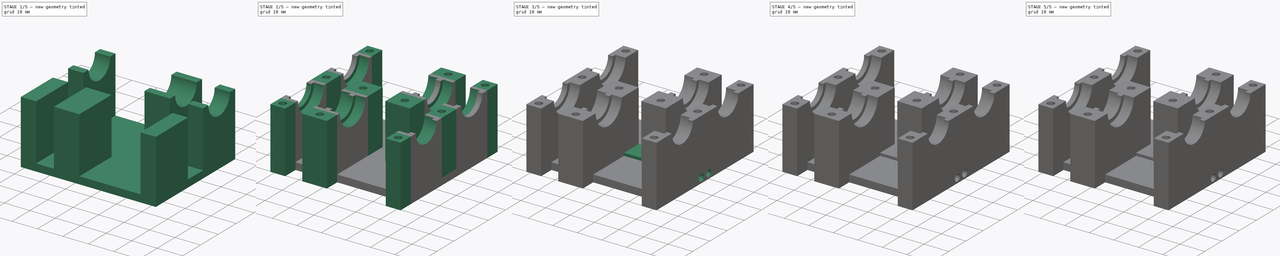
[diagram: build sequence overview — one tinted view per stage of 5, left to right]
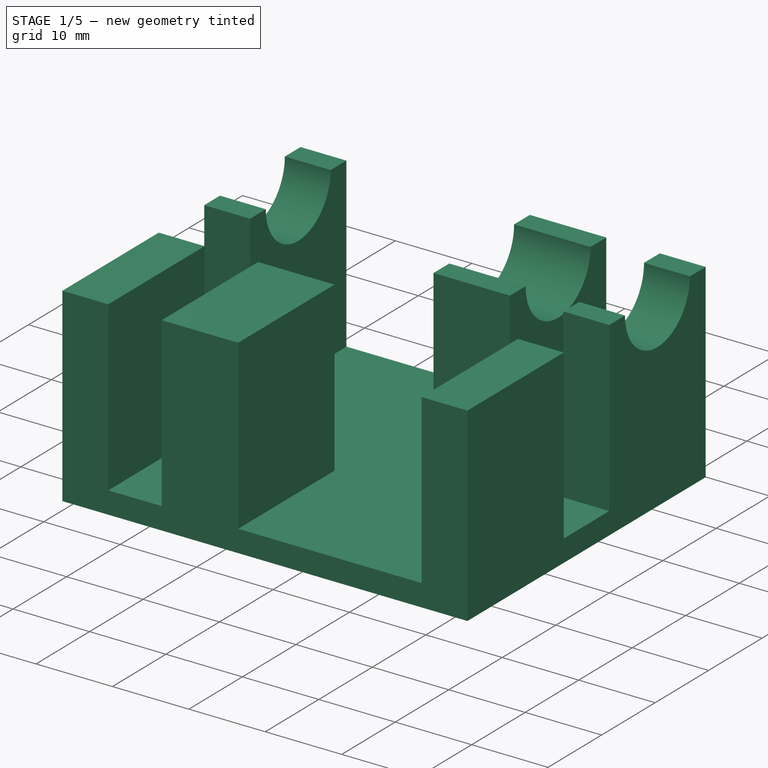
[diagram: stage 1 of 5 — iso view after this stage's code; geometry added in this stage tinted green]
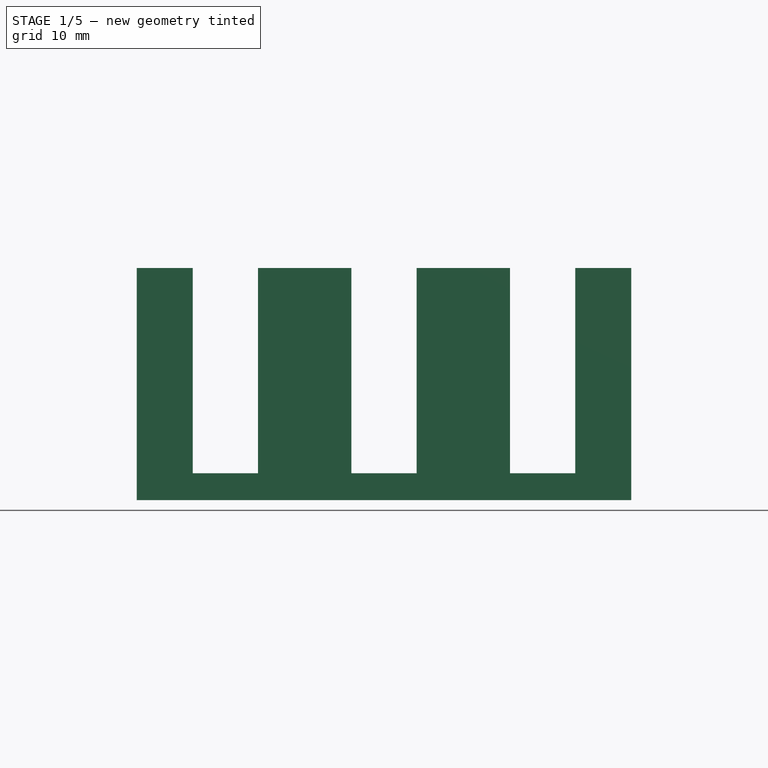
[diagram: stage 1 of 5 — front view after this stage's code; geometry added in this stage tinted green]
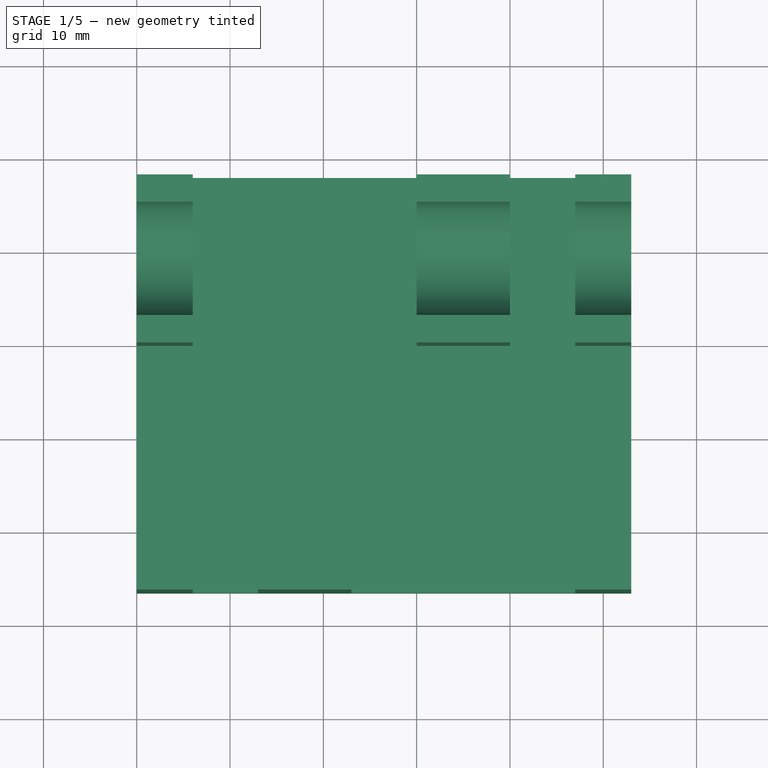
[diagram: stage 1 of 5 — top view after this stage's code; geometry added in this stage tinted green]
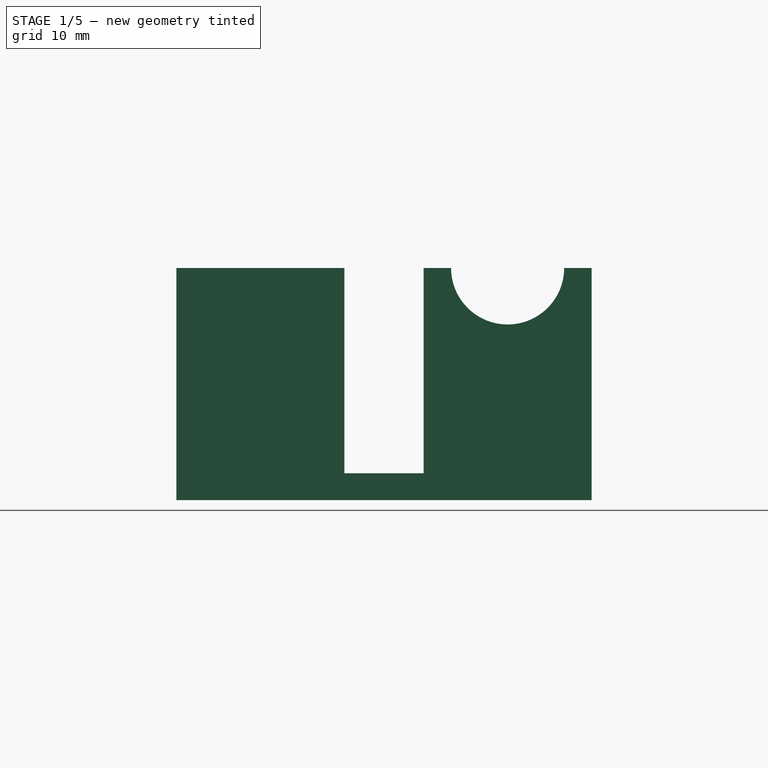
[diagram: stage 1 of 5 — right view after this stage's code; geometry added in this stage tinted green]
FCSTD DOCUMENT  (FreeCAD 0.20R29177 +426 (Git))
Label: TransmissionHolderNew
License: All rights reserved
LicenseURL: http://en.wikipedia.org/wiki/All_rights_reserved
objects: Sketcher::SketchObject×17, PartDesign::Line×7, PartDesign::Pad×6, PartDesign::Groove×6, PartDesign::Pocket×4, PartDesign::Body×3, Spreadsheet::Sheet×1
note: 59 computed .brp shape members not serialized (recipe doc carries the construction recipe); baked Part::Feature solids carry a one-line shape summary decoded from their .brp

FEATURE [Sketcher::SketchObject] Sketch
  FullyConstrained = true
  MapMode = 5
  Support = -> [XY_Plane]
  expr: Constraints[10] = Spreadsheet.bearingBlockSize
  expr: Constraints[20] = Spreadsheet.supportDist
  expr: Constraints[22] = Spreadsheet.normalBlockWidth
  expr: Constraints[34] = Spreadsheet.supportVerticalDist
  expr: Constraints[45] = Spreadsheet.supportVerticalDist
  expr: Constraints[46] = Spreadsheet.wheelWidth
  expr: Constraints[65] = Spreadsheet.supportDist
  expr: Constraints[9] = Spreadsheet.singleBearingWidth
  sketch-geometry (24):
    g0: LineSegment StartX=0 StartY=0 StartZ=0 EndX=6 EndY=0 EndZ=0
    g1: LineSegment StartX=6 StartY=0 StartZ=0 EndX=6 EndY=18 EndZ=0
    g2: LineSegment StartX=6 StartY=18 StartZ=0 EndX=0 EndY=18 EndZ=0
    g3: LineSegment StartX=0 StartY=18 StartZ=0 EndX=0 EndY=0 EndZ=0
    g4: LineSegment StartX=30 StartY=0 StartZ=0 EndX=40 EndY=0 EndZ=0
    g5: LineSegment StartX=40 StartY=0 StartZ=0 EndX=40 EndY=18 EndZ=0
    g6: LineSegment StartX=40 StartY=18 StartZ=0 EndX=30 EndY=18 EndZ=0
    g7: LineSegment StartX=30 StartY=18 StartZ=0 EndX=30 EndY=0 EndZ=0
    g8: LineSegment StartX=0 StartY=-8.5 StartZ=0 EndX=6 EndY=-8.5 EndZ=0
    g9: LineSegment StartX=6 StartY=-8.5 StartZ=0 EndX=6 EndY=-26.5 EndZ=0
    g10: LineSegment StartX=6 StartY=-26.5 StartZ=0 EndX=0 EndY=-26.5 EndZ=0
    g11: LineSegment StartX=0 StartY=-26.5 StartZ=0 EndX=0 EndY=-8.5 EndZ=0
    g12: LineSegment StartX=13 StartY=-8.5 StartZ=0 EndX=23 EndY=-8.5 EndZ=0
    g13: LineSegment StartX=23 StartY=-8.5 StartZ=0 EndX=23 EndY=-26.5 EndZ=0
    g14: LineSegment StartX=23 StartY=-26.5 StartZ=0 EndX=13 EndY=-26.5 EndZ=0
    g15: LineSegment StartX=13 StartY=-26.5 StartZ=0 EndX=13 EndY=-8.5 EndZ=0
    g16: LineSegment StartX=47 StartY=0 StartZ=0 EndX=53 EndY=0 EndZ=0
    g17: LineSegment StartX=53 StartY=0 StartZ=0 EndX=53 EndY=18 EndZ=0
    g18: LineSegment StartX=53 StartY=18 StartZ=0 EndX=47 EndY=18 EndZ=0
    g19: LineSegment StartX=47 StartY=18 StartZ=0 EndX=47 EndY=0 EndZ=0
    g20: LineSegment StartX=47 StartY=-8.5 StartZ=0 EndX=53 EndY=-8.5 EndZ=0
    g21: LineSegment StartX=53 StartY=-8.5 StartZ=0 EndX=53 EndY=-26.5 EndZ=0
    g22: LineSegment StartX=53 StartY=-26.5 StartZ=0 EndX=47 EndY=-26.5 EndZ=0
    g23: LineSegment StartX=47 StartY=-26.5 StartZ=0 EndX=47 EndY=-8.5 EndZ=0
  constraints (71):
    c: Coincident(g0,g1)
    c: Coincident(g1,g2)
    c: Coincident(g2,g3)
    c: Coincident(g3,g0)
    c: Horizontal(g0)
    c: Horizontal(g2)
    c: Vertical(g1)
    c: Vertical(g3)
    c: Coincident(g0,g-1)
    c: DistanceX(g2,g2) = 6
    c: DistanceY(g1,g1) = 18
    c: Coincident(g4,g5)
    c: Coincident(g5,g6)
    c: Coincident(g6,g7)
    c: Coincident(g7,g4)
    c: Horizontal(g4)
    c: Horizontal(g6)
    c: Vertical(g5)
    c: Vertical(g7)
    c: PointOnObject(g4,g-1)
    c: DistanceX(g0,g4) = 24
    c: Equal(g7,g3)
    c: DistanceX(g6,g6) = 10
    c: Coincident(g8,g9)
    c: Coincident(g9,g10)
    c: Coincident(g10,g11)
    c: Coincident(g11,g8)
    c: Horizontal(g8)
    c: Horizontal(g10)
    c: Vertical(g9)
    c: Vertical(g11)
    c: PointOnObject(g8,g-2)
    c: Equal(g11,g3)
    c: Equal(g8,g2)
    c: DistanceY(g8,g0) = 8.5
    c: Coincident(g12,g13)
    c: Coincident(g13,g14)
    c: Coincident(g14,g15)
    c: Coincident(g15,g12)
    c: Horizontal(g12)
    c: Horizontal(g14)
    c: Vertical(g13)
    c: Vertical(g15)
    c: Equal(g6,g12)
    c: Equal(g15,g7)
    c: DistanceY(g12,g0) = 8.5
    c: DistanceX(g8,g12) = 7
    c: Coincident(g16,g17)
    c: Coincident(g17,g18)
    c: Coincident(g18,g19)
    c: Coincident(g19,g16)
    c: Horizontal(g16)
    c: Horizontal(g18)
    c: Vertical(g17)
    c: Vertical(g19)
    c: PointOnObject(g16,g-1)
    c: Coincident(g20,g21)
    c: Coincident(g21,g22)
    c: Coincident(g22,g23)
    c: Coincident(g23,g20)
    c: Horizontal(g20)
    c: Horizontal(g22)
    c: Vertical(g21)
    c: Vertical(g23)
    c: DistanceX(g18,g20) = 0
    c: DistanceX(g12,g20) = 24
    c: Equal(g18,g2)
    c: Equal(g20,g8)
    c: Equal(g19,g5)
    c: Equal(g23,g1)
    c: DistanceY(g22,g13) = 0
FEATURE [Spreadsheet::Sheet] Spreadsheet
  cells = A2=bearingWidth; B2(bearingWidth)=4; A3=bearingSpacing; B3(bearingSpacing)=2; A4=wheelWidth; B4(wheelWidth)=7; A5=wheelSpacing; B5=0; C5=supportDist; D5(supportDist)==B4 * 2 + B2 * 2 + B3 + B5; A6=supportVerticalDist; B6(supportVerticalDist)==28 - B11 - 1.5; A7=height; B7(height)=22; A8=normalBlockWidth; B8(normalBlockWidth)==B2 * 2 + B3; A9=bearingBlockSupportWidth; B9(bearingBlockSupportWidth)=2.88; C9=added to bearinR*2 for block height; A10=bearingR; B10(bearingR)=7.56; A11=bearingBlockSize; B11(bearingBlockSize)==B10 * 2 + B9; A12=shaftPassR; B12(shaftPassR)==B10 - 1.5; A13=sideWidth; B13(sideWidth)=6; A14=totalHeight; B14(totalHeight)==B7 + B9; E14=Spreadsheet.bearingBlockSupportWidth + Spreadsheet.height; A15=screwR; B15(screwR)=1.4; A16=sideScrewX; B16(sideScrewX)=5; A17=middleScrewToSideX; B17(middleScrewToSideX)=18; A18=totalFrontShaftFaceWidth; B18(totalFrontShaftFaceWidth)==B20 + D5 + B8 + B4 + B20; C18=Spreadsheet.singleBearingWidth\nSpreadsheet.supportDist\nSpreadsheet.normalBlockWidth\nSpreadsheet.wheelWidth\nSpreadsheet.singleBearingWidth; A19=bottomScrewPadWidth; B19(bottomScrewPadWidth)=15; A20=singleBearingWidth; B20(singleBearingWidth)==B2 + B3; C20=bearingWidth + bearingSpacing; A21=bottomVerticalScrewPlaceHeight; B21(bottomVerticalScrewPlaceHeight)=4; A22=s2; B22(s2)==B20 + B4; C22=singleBearing+whell; A23=s3; B23(s3)==B22 + B8; A24=s4; B24(s4)==B20 + D5; C24=singleBearing+; A25=s5; B25(s5)==B24 + B8; A26=s6; B26(s6)==B18 - B20; A29=coverPieces; A30=coverConnOutsideBearingBlockCenter; B30(coverConnOutsideBearingBlockCenter)==B11 / 2; A31=coverConnOutsideBearingBlockCenterLongSide; B31(coverConnOutsideBearingBlockCenterLongSide)==B30 + B6; A32=coverBearingHoldeThickness; B32=2.5; A33=coverBearingHoldOutsideR; B33(coverBearingHoldOutsideR)==B10 + B32; A34=smallShaftHoleToSide; B34(smallShaftHoleToSide)==B11 / 2 - B12; A35=biggerBearingHoleToSide; B35(biggerBearingHoleToSide)==B11 / 2 - B10; A36=passingM3ScrewR; B36(passingM3ScrewR)==B15 + 0.2; A37=m3HeadSize; B37(m3HeadSize)=2.5
FEATURE [Sketcher::SketchObject] Sketch001  label="Sketch001BasePlate"
  ExternalGeometry = -> [Sketch]
  FullyConstrained = true
  MapMode = 5
  Support = -> [XY_Plane]
  sketch-geometry (4):
    g0: LineSegment StartX=0 StartY=18 StartZ=0 EndX=53 EndY=18 EndZ=0
    g1: LineSegment StartX=53 StartY=18 StartZ=0 EndX=53 EndY=-26.5 EndZ=0
    g2: LineSegment StartX=53 StartY=-26.5 StartZ=0 EndX=0 EndY=-26.5 EndZ=0
    g3: LineSegment StartX=0 StartY=-26.5 StartZ=0 EndX=0 EndY=18 EndZ=0
  constraints (10):
    c: Coincident(g0,g1)
    c: Coincident(g1,g2)
    c: Coincident(g2,g3)
    c: Coincident(g3,g0)
    c: Horizontal(g0)
    c: Horizontal(g2)
    c: Vertical(g1)
    c: Vertical(g3)
    c: Coincident(g0,g-3)
    c: Coincident(g1,g-4)
FEATURE [PartDesign::Pad] Pad
  Direction = (0,0,1)
  Length = 2.88
  Length2 = 10
  Profile = -> Sketch001
  ReferenceAxis = -> Sketch001 [N_Axis]
  Type = 0
  expr: Length = Spreadsheet.bearingBlockSupportWidth
FEATURE [PartDesign::Pad] Pad001
  BaseFeature = -> Pad
  Direction = (0,0,1)
  Length = 24.88
  Length2 = 10
  Profile = -> Sketch
  ReferenceAxis = -> Sketch [N_Axis]
  Type = 0
  expr: Length = Spreadsheet.totalHeight
FEATURE [Sketcher::SketchObject] Sketch002  label="Sketch002TopBearingPassSmall"
  ExternalGeometry = -> [Pad001]
  FullyConstrained = true
  MapMode = 5
  Placement = pos=(0,0,24.88) rot=(0,0,1;0rad)
  Support = -> [Pad001]
  expr: Constraints[11] = Spreadsheet.bearingBlockSize / 2
  expr: Constraints[12] = Spreadsheet.shaftPassR
  sketch-geometry (4):
    g0: LineSegment StartX=0 StartY=15.06 StartZ=0 EndX=53 EndY=15.06 EndZ=0
    g1: LineSegment StartX=53 StartY=15.06 StartZ=0 EndX=53 EndY=9 EndZ=0
    g2: LineSegment StartX=53 StartY=9 StartZ=0 EndX=0 EndY=9 EndZ=0
    g3: LineSegment StartX=0 StartY=9 StartZ=0 EndX=0 EndY=15.06 EndZ=0
  constraints (13):
    c: Coincident(g0,g1)
    c: Coincident(g1,g2)
    c: Coincident(g2,g3)
    c: Coincident(g3,g0)
    c: Horizontal(g0)
    c: Horizontal(g2)
    c: Vertical(g1)
    c: Vertical(g3)
    c: PointOnObject(g0,g-3)
    c: PointOnObject(g1,g-4)
    c: DistanceY(g-3,g-3) = 18
    c: DistanceY(g-3,g2) = 9
    c: DistanceY(g3,g3) = 6.06
FEATURE [PartDesign::Line] DatumLine  label="DatumLineTopBearingPass"
  AttacherType = Attacher::AttachEngineLine
  Length = 20
  MapMode = 29
  Placement = pos=(0,9,24.88) rot=(0.57735,-0.57735,-0.57735;2.0944rad)
  ResizeMode = 0
  Support = -> [Sketch002]
FEATURE [PartDesign::Groove] Groove
  Angle = 360
  Axis = (-1,0,0)
  Base = (0,9,24.88)
  BaseFeature = -> Pad001
  Profile = -> Sketch002
  ReferenceAxis = -> DatumLine
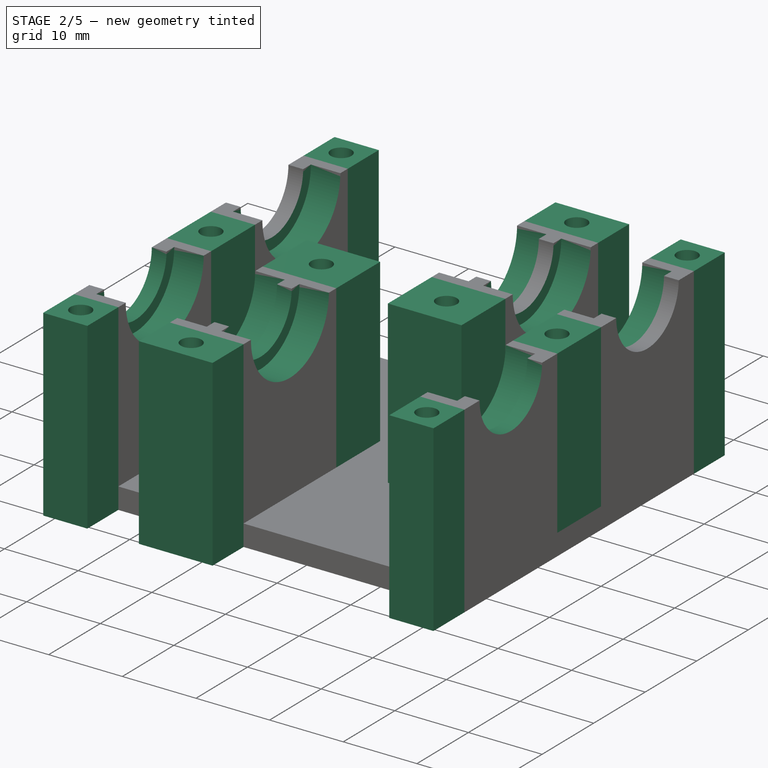
[diagram: stage 2 of 5 — iso view after this stage's code; geometry added in this stage tinted green]
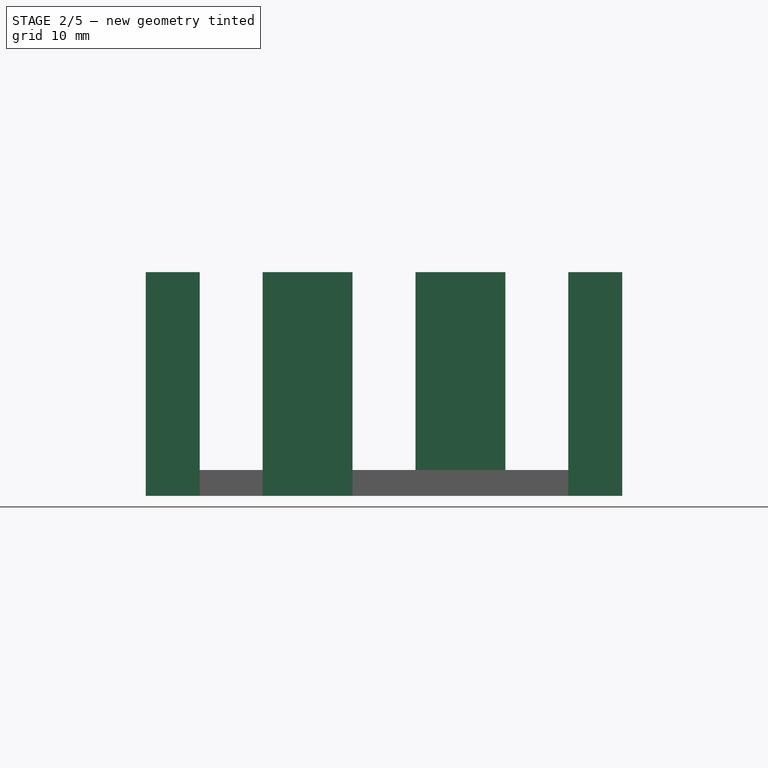
[diagram: stage 2 of 5 — front view after this stage's code; geometry added in this stage tinted green]
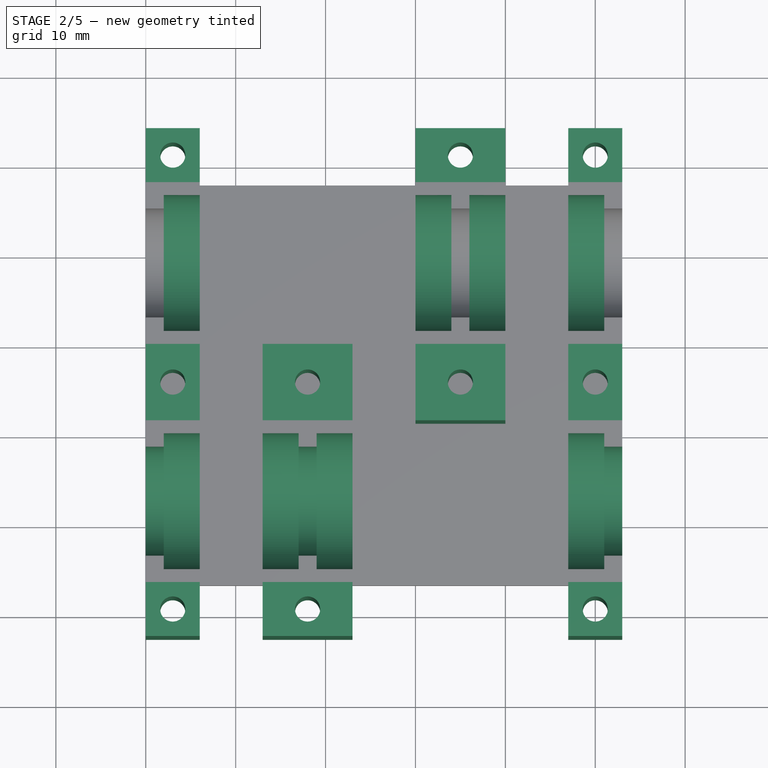
[diagram: stage 2 of 5 — top view after this stage's code; geometry added in this stage tinted green]
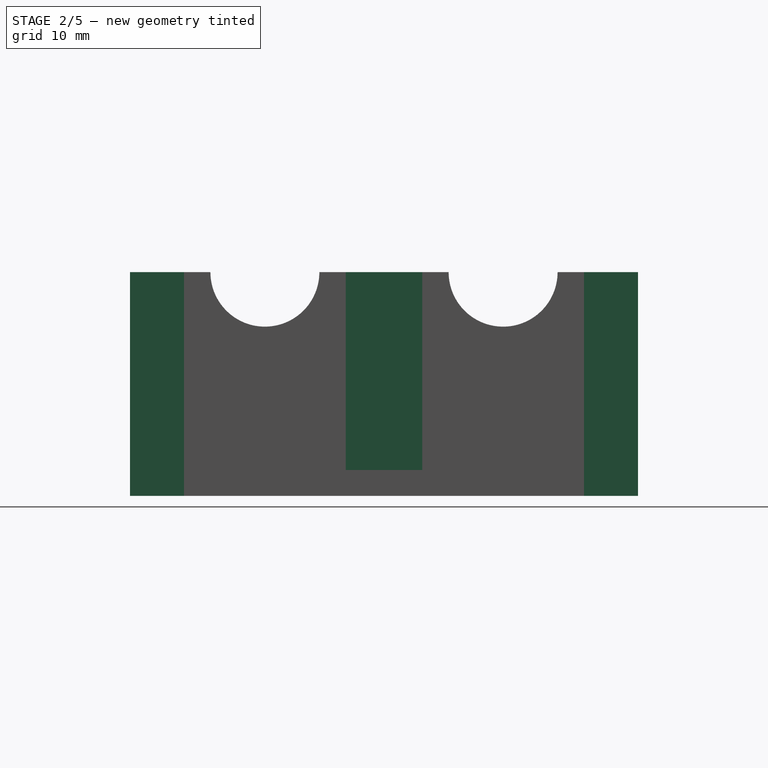
[diagram: stage 2 of 5 — right view after this stage's code; geometry added in this stage tinted green]
FEATURE [Sketcher::SketchObject] Sketch003  label="Sketch003TopShaftPass"
  ExternalGeometry = -> [DatumLine,Groove]
  FullyConstrained = true
  MapMode = 5
  Placement = pos=(0,0,24.88) rot=(0,0,1;0rad)
  Support = -> [Groove]
  expr: Constraints[16] = Spreadsheet.bearingSpacing
  expr: Constraints[17] = Spreadsheet.bearingWidth
  expr: Constraints[19] = Spreadsheet.bearingR
  expr: Constraints[21] = Spreadsheet.bearingR
  expr: Constraints[22] = Spreadsheet.bearingSpacing
  expr: Constraints[23] = Spreadsheet.bearingSpacing
  sketch-geometry (8):
    g0: LineSegment StartX=2 StartY=16.56 StartZ=0 EndX=34 EndY=16.56 EndZ=0
    g1: LineSegment StartX=34 StartY=16.56 StartZ=0 EndX=34 EndY=9 EndZ=0
    g2: LineSegment StartX=34 StartY=9 StartZ=0 EndX=2 EndY=9 EndZ=0
    g3: LineSegment StartX=2 StartY=9 StartZ=0 EndX=2 EndY=16.56 EndZ=0
    g4: LineSegment StartX=36 StartY=16.56 StartZ=0 EndX=51 EndY=16.56 EndZ=0
    g5: LineSegment StartX=51 StartY=16.56 StartZ=0 EndX=51 EndY=9 EndZ=0
    g6: LineSegment StartX=51 StartY=9 StartZ=0 EndX=36 EndY=9 EndZ=0
    g7: LineSegment StartX=36 StartY=9 StartZ=0 EndX=36 EndY=16.56 EndZ=0
  constraints (25):
    c: Coincident(g0,g1)
    c: Coincident(g1,g2)
    c: Coincident(g2,g3)
    c: Coincident(g3,g0)
    c: Horizontal(g0)
    c: Horizontal(g2)
    c: Vertical(g1)
    c: Vertical(g3)
    c: Coincident(g4,g5)
    c: Coincident(g5,g6)
    c: Coincident(g6,g7)
    c: Coincident(g7,g4)
    c: Horizontal(g4)
    c: Horizontal(g6)
    c: Vertical(g5)
    c: Vertical(g7)
    c: DistanceX(g-1,g2) = 2
    c: DistanceX(g-4,g1) = 4
    c: DistanceX(g-4,g-5) = 10
    c: Distance(g0,g-3) = 7.56
    c: Equal(g3,g7)
    c: Distance(g4,g-3) = 7.56
    c: DistanceX(g5,g-6) = 2
    c: DistanceX(g1,g6) = 2
    c: PointOnObject(g2,g-3)
FEATURE [PartDesign::Groove] Groove001
  Angle = 360
  Axis = (-1,0,0)
  Base = (0,9,24.88)
  BaseFeature = -> Groove
  Profile = -> Sketch003
  ReferenceAxis = -> DatumLine
FEATURE [PartDesign::Line] DatumLine001
  AttacherType = Attacher::AttachEngineLine
  Length = 20
  MapMode = 43
  Placement = pos=(0,-17.5,24.88) rot=(0.57735,0.57735,0.57735;2.0944rad)
  ResizeMode = 0
  Support = -> [Groove001]
FEATURE [Sketcher::SketchObject] Sketch004  label="Sketch004BottomShaftPass"
  AttachmentOffset = pos=(0,0,24.88) rot=(0,0,1;0rad)
  ExternalGeometry = -> [Groove001,DatumLine001]
  FullyConstrained = true
  MapMode = 5
  Placement = pos=(0,0,24.88) rot=(0,0,1;0rad)
  Support = -> [XY_Plane]
  expr: .AttachmentOffset.Base.z = Spreadsheet.bearingBlockSupportWidth + Spreadsheet.height
  expr: Constraints[11] = Spreadsheet.shaftPassR
  expr: Constraints[15] = Spreadsheet.bearingSpacing
  expr: Constraints[16] = Spreadsheet.shaftPassR
  expr: Constraints[19] = Spreadsheet.bearingWidth
  expr: Constraints[25] = Spreadsheet.bearingWidth
  expr: Constraints[26] = Spreadsheet.shaftPassR
  expr: Constraints[29] = Spreadsheet.bearingSpacing
  expr: Constraints[30] = Spreadsheet.shaftPassR
  expr: Constraints[37] = Spreadsheet.bearingR
  expr: Constraints[44] = Spreadsheet.bearingR
  expr: Constraints[45] = Spreadsheet.bearingR
  expr: Constraints[46] = Spreadsheet.bearingR
  sketch-geometry (16):
    g0: LineSegment StartX=0 StartY=-17.5 StartZ=0 EndX=53 EndY=-17.5 EndZ=0
    g1: LineSegment StartX=53 StartY=-17.5 StartZ=0 EndX=53 EndY=-11.44 EndZ=0
    g2: LineSegment StartX=53 StartY=-11.44 StartZ=0 EndX=51 EndY=-11.44 EndZ=0
    g3: LineSegment StartX=0 StartY=-11.44 StartZ=0 EndX=0 EndY=-17.5 EndZ=0
    g4: LineSegment StartX=2 StartY=-11.44 StartZ=0 EndX=2 EndY=-9.94 EndZ=0
    g5: LineSegment StartX=2 StartY=-11.44 StartZ=0 EndX=0 EndY=-11.44 EndZ=0
    g6: LineSegment StartX=2 StartY=-9.94 StartZ=0 EndX=17 EndY=-9.94 EndZ=0
    g7: LineSegment StartX=17 StartY=-9.94 StartZ=0 EndX=17 EndY=-11.44 EndZ=0
    g8: LineSegment StartX=19 StartY=-9.94 StartZ=0 EndX=19 EndY=-11.44 EndZ=0
    g9: LineSegment StartX=19 StartY=-11.44 StartZ=0 EndX=17 EndY=-11.44 EndZ=0
    g10: LineSegment StartX=51 StartY=-9.94 StartZ=0 EndX=51 EndY=-11.44 EndZ=0
    g11: LineSegment StartX=47 StartY=-11.44 StartZ=0 EndX=23 EndY=-11.44 EndZ=0
    g12: LineSegment StartX=47 StartY=-11.44 StartZ=0 EndX=47 EndY=-9.94 EndZ=0
    g13: LineSegment StartX=47 StartY=-9.94 StartZ=0 EndX=51 EndY=-9.94 EndZ=0
    g14: LineSegment StartX=23 StartY=-11.44 StartZ=0 EndX=23 EndY=-9.94 EndZ=0
    g15: LineSegment StartX=23 StartY=-9.94 StartZ=0 EndX=19 EndY=-9.94 EndZ=0
  constraints (49):
    c: Coincident(g0,g1)
    c: Coincident(g1,g2)
    c: Coincident(g5,g3)
    c: Coincident(g3,g0)
    c: Horizontal(g0)
    c: Horizontal(g2)
    c: Vertical(g1)
    c: Vertical(g3)
    c: PointOnObject(g0,g-4)
    c: PointOnObject(g1,g-5)
    c: PointOnObject(g5,g-3)
    c: DistanceY(g3,g3) = 6.06
    c: Vertical(g4)
    c: Coincident(g5,g4)
    c: Parallel(g2,g5)
    c: DistanceX(g5,g5) = 2
    c: Distance(g11,g0) = 6.06
    c: Coincident(g6,g4)
    c: Coincident(g7,g6)
    c: DistanceX(g-8,g6) = 4
    c: Vertical(g7)
    c: Vertical(g8)
    c: Coincident(g9,g8)
    c: Horizontal(g9)
    c: Coincident(g9,g7)
    c: DistanceX(g8,g-8) = 4
    c: Distance(g7,g0) = 6.06
    c: Vertical(g10)
    c: Coincident(g2,g10)
    c: DistanceX(g2,g2) = 2
    c: DistanceY(g1,g1) = 6.06
    c: Horizontal(g11)
    c: Coincident(g12,g11)
    c: Vertical(g12)
    c: Coincident(g13,g12)
    c: Horizontal(g13)
    c: Coincident(g13,g10)
    c: Distance(g12,g0) = 7.56
    c: Coincident(g14,g11)
    c: Vertical(g14)
    c: Coincident(g15,g14)
    c: Horizontal(g15)
    c: Coincident(g15,g8)
    c: DistanceX(g-8,g14) = 0
    c: Distance(g14,g0) = 7.56
    c: Distance(g6,g0) = 7.56
    c: Distance(g4,g0) = 7.56
    c: DistanceX(g12,g-7) = 0
    c: DistanceX(g-6,g-6) = 6
FEATURE [PartDesign::Groove] Groove002
  Angle = 360
  Axis = (1,0,0)
  Base = (0,-17.5,24.88)
  BaseFeature = -> Groove001
  Profile = -> Sketch004
  ReferenceAxis = -> DatumLine001
FEATURE [Sketcher::SketchObject] Sketch005  label="Sketch005SideScrewHoles"
  ExternalGeometry = -> [Groove002]
  FullyConstrained = false
  MapMode = 5
  Support = -> [XY_Plane]
  expr: Constraints[122] = Spreadsheet.totalFrontShaftFaceWidth
  expr: Constraints[125] = Spreadsheet.normalBlockWidth
  expr: Constraints[126] = Spreadsheet.normalBlockWidth
  expr: Constraints[127] = Spreadsheet.s2
  expr: Constraints[128] = Spreadsheet.s4
  expr: Constraints[148] = Spreadsheet.screwR
  expr: Constraints[150] = Spreadsheet.screwR
  expr: Constraints[58] = Spreadsheet.sideWidth
  expr: Constraints[70] = Spreadsheet.singleBearingWidth / 2
  expr: Constraints[71] = Spreadsheet.singleBearingWidth / 2
  expr: Constraints[72] = Spreadsheet.singleBearingWidth / 2
  expr: Constraints[73] = Spreadsheet.singleBearingWidth / 2
  expr: Constraints[74] = Spreadsheet.normalBlockWidth / 2
  expr: Constraints[75] = Spreadsheet.normalBlockWidth / 2
  expr: Constraints[81] = Spreadsheet.screwR
  expr: Constraints[91] = Spreadsheet.supportVerticalDist
  expr: Constraints[92] = Spreadsheet.singleBearingWidth
  sketch-geometry (57):
    g0: LineSegment StartX=0 StartY=-26.5 StartZ=0 EndX=6 EndY=-26.5 EndZ=0
    g1: LineSegment StartX=6 StartY=-26.5 StartZ=0 EndX=6 EndY=-32.5 EndZ=0
    g2: LineSegment StartX=6 StartY=-32.5 StartZ=0 EndX=0 EndY=-32.5 EndZ=0
    g3: LineSegment StartX=0 StartY=-32.5 StartZ=0 EndX=0 EndY=-26.5 EndZ=0
    g4: LineSegment StartX=13 StartY=-26.5 StartZ=0 EndX=23 EndY=-26.5 EndZ=0
    g5: LineSegment StartX=23 StartY=-26.5 StartZ=0 EndX=23 EndY=-32.5 EndZ=0
    g6: LineSegment StartX=23 StartY=-32.5 StartZ=0 EndX=13 EndY=-32.5 EndZ=0
    g7: LineSegment StartX=13 StartY=-32.5 StartZ=0 EndX=13 EndY=-26.5 EndZ=0
    g8: LineSegment StartX=47 StartY=-26.5 StartZ=0 EndX=53 EndY=-26.5 EndZ=0
    g9: LineSegment StartX=53 StartY=-26.5 StartZ=0 EndX=53 EndY=-32.5 EndZ=0
    g10: LineSegment StartX=53 StartY=-32.5 StartZ=0 EndX=47 EndY=-32.5 EndZ=0
    g11: LineSegment StartX=47 StartY=-32.5 StartZ=0 EndX=47 EndY=-26.5 EndZ=0
    g12: LineSegment StartX=0 StartY=18 StartZ=0 EndX=6 EndY=18 EndZ=0
    g13: LineSegment StartX=6 StartY=18 StartZ=0 EndX=6 EndY=24 EndZ=0
    g14: LineSegment StartX=6 StartY=24 StartZ=0 EndX=0 EndY=24 EndZ=0
    g15: LineSegment StartX=0 StartY=24 StartZ=0 EndX=0 EndY=18 EndZ=0
    g16: LineSegment StartX=30 StartY=18 StartZ=0 EndX=40 EndY=18 EndZ=0
    g17: LineSegment StartX=40 StartY=18 StartZ=0 EndX=40 EndY=24 EndZ=0
    g18: LineSegment StartX=40 StartY=24 StartZ=0 EndX=30 EndY=24 EndZ=0
    g19: LineSegment StartX=30 StartY=24 StartZ=0 EndX=30 EndY=18 EndZ=0
    g20: LineSegment StartX=47 StartY=18 StartZ=0 EndX=53 EndY=18 EndZ=0
    g21: LineSegment StartX=53 StartY=18 StartZ=0 EndX=53 EndY=24 EndZ=0
    g22: LineSegment StartX=53 StartY=24 StartZ=0 EndX=47 EndY=24 EndZ=0
    g23: LineSegment StartX=47 StartY=24 StartZ=0 EndX=47 EndY=18 EndZ=0
    g24: LineSegment StartX=0 StartY=21 StartZ=0 EndX=72.5593 EndY=21 EndZ=0
    g25: LineSegment StartX=0 StartY=-29.5 StartZ=0 EndX=58.8845 EndY=-29.5 EndZ=0
    g26: Circle CenterX=3 CenterY=21 CenterZ=0 NormalX=0 NormalY=0 NormalZ=1 AngleXU=0 Radius=1.4
    g27: Circle CenterX=35 CenterY=21 CenterZ=0 NormalX=0 NormalY=0 NormalZ=1 AngleXU=0 Radius=1.4
    g28: Circle CenterX=50 CenterY=21 CenterZ=0 NormalX=0 NormalY=0 NormalZ=1 AngleXU=0 Radius=1.4
    g29: Circle CenterX=3 CenterY=-29.5 CenterZ=0 NormalX=0 NormalY=0 NormalZ=1 AngleXU=0 Radius=1.4
    g30: Circle CenterX=18 CenterY=-29.5 CenterZ=0 NormalX=0 NormalY=0 NormalZ=1 AngleXU=0 Radius=1.4
    g31: Circle CenterX=50 CenterY=-29.5 CenterZ=0 NormalX=0 NormalY=0 NormalZ=1 AngleXU=0 Radius=1.4
    g32: LineSegment StartX=0 StartY=0 StartZ=0 EndX=6 EndY=0 EndZ=0
    g33: LineSegment StartX=6 StartY=0 StartZ=0 EndX=6 EndY=-8.5 EndZ=0
    g34: LineSegment StartX=6 StartY=-8.5 StartZ=0 EndX=0 EndY=-8.5 EndZ=0
    g35: LineSegment StartX=0 StartY=-8.5 StartZ=0 EndX=0 EndY=0 EndZ=0
    g36: LineSegment StartX=13 StartY=0 StartZ=0 EndX=23 EndY=0 EndZ=0
    g37: LineSegment StartX=23 StartY=0 StartZ=0 EndX=23 EndY=-8.5 EndZ=0
    g38: LineSegment StartX=23 StartY=-8.5 StartZ=0 EndX=13 EndY=-8.5 EndZ=0
    g39: LineSegment StartX=13 StartY=-8.5 StartZ=0 EndX=13 EndY=0 EndZ=0
    g40: LineSegment StartX=30 StartY=0 StartZ=0 EndX=40 EndY=0 EndZ=0
    g41: LineSegment StartX=40 StartY=0 StartZ=0 EndX=40 EndY=-8.5 EndZ=0
    g42: LineSegment StartX=40 StartY=-8.5 StartZ=0 EndX=30 EndY=-8.5 EndZ=0
    g43: LineSegment StartX=30 StartY=-8.5 StartZ=0 EndX=30 EndY=0 EndZ=0
    g44: LineSegment StartX=47 StartY=0 StartZ=0 EndX=53 EndY=0 EndZ=0
    g45: LineSegment StartX=53 StartY=0 StartZ=0 EndX=53 EndY=-8.5 EndZ=0
    g46: LineSegment StartX=53 StartY=-8.5 StartZ=0 EndX=47 EndY=-8.5 EndZ=0
    g47: LineSegment StartX=47 StartY=-8.5 StartZ=0 EndX=47 EndY=0 EndZ=0
    g48: LineSegment StartX=-6.84935 StartY=-4.25 StartZ=0 EndX=53 EndY=-4.25 EndZ=0
    g49: LineSegment StartX=3 StartY=0 StartZ=0 EndX=3 EndY=-4.25 EndZ=0
    g50: LineSegment StartX=18 StartY=0 StartZ=0 EndX=18 EndY=-4.25 EndZ=0
    g51: LineSegment StartX=50 StartY=0 StartZ=0 EndX=50 EndY=-4.25 EndZ=0
    g52: LineSegment StartX=35 StartY=0 StartZ=0 EndX=35 EndY=-4.25 EndZ=0
    g53: Circle CenterX=35 CenterY=-4.25 CenterZ=0 NormalX=0 NormalY=0 NormalZ=1 AngleXU=0 Radius=1.4
    g54: Circle CenterX=18 CenterY=-4.25 CenterZ=0 NormalX=0 NormalY=0 NormalZ=1 AngleXU=0 Radius=1.4
    g55: Circle CenterX=3 CenterY=-4.25 CenterZ=0 NormalX=0 NormalY=0 NormalZ=1 AngleXU=0 Radius=1.4
    g56: Circle CenterX=50 CenterY=-4.25 CenterZ=0 NormalX=0 NormalY=0 NormalZ=1 AngleXU=0 Radius=1.4
  constraints (147):
    c: Coincident(g0,g1)
    c: Coincident(g1,g2)
    c: Coincident(g2,g3)
    c: Coincident(g3,g0)
    c: Horizontal(g2)
    c: Vertical(g1)
    c: Vertical(g3)
    c: Coincident(g0,g-3)
    c: Coincident(g4,g5)
    c: Coincident(g5,g6)
    c: Coincident(g6,g7)
    c: Coincident(g7,g4)
    c: Horizontal(g6)
    c: Vertical(g5)
    c: Vertical(g7)
    c: Coincident(g4,g-4)
    c: Coincident(g8,g9)
    c: Coincident(g9,g10)
    c: Coincident(g10,g11)
    c: Coincident(g11,g8)
    c: Horizontal(g10)
    c: Vertical(g9)
    c: Vertical(g11)
    c: Coincident(g8,g-5)
    c: Coincident(g12,g13)
    c: Coincident(g13,g14)
    c: Coincident(g14,g15)
    c: Coincident(g15,g12)
    c: Horizontal(g14)
    c: Vertical(g13)
    c: Vertical(g15)
    c: Coincident(g12,g-6)
    c: Coincident(g16,g17)
    c: Coincident(g17,g18)
    c: Coincident(g18,g19)
    c: Coincident(g19,g16)
    c: Horizontal(g18)
    c: Vertical(g17)
    c: Vertical(g19)
    c: Coincident(g16,g-7)
    c: Coincident(g20,g21)
    c: Coincident(g21,g22)
    c: Coincident(g22,g23)
    c: Coincident(g23,g20)
    c: Horizontal(g22)
    c: Vertical(g21)
    c: Vertical(g23)
    c: Coincident(g20,g-8)
    c: Coincident(g20,g-8)
    c: Coincident(g16,g-7)
    c: Coincident(g12,g-6)
    c: Coincident(g0,g-3)
    c: Coincident(g-4,g4)
    c: Coincident(g-5,g8)
    c: Equal(g15,g3)
    c: Equal(g3,g19)
    c: Equal(g19,g11)
    c: Equal(g11,g23)
    c: DistanceY(g21,g21) = 6
    c: Equal(g23,g5)
    c: Horizontal(g24)
    c: Horizontal(g25)
    c: Symmetric(g14,g12,g24)
    c: Symmetric(g2,g0,g25)
    c: PointOnObject(g26,g24)
    c: PointOnObject(g27,g24)
    c: PointOnObject(g28,g24)
    c: PointOnObject(g29,g25)
    c: PointOnObject(g30,g25)
    c: PointOnObject(g31,g25)
    c: DistanceX(g12,g26) = 3
    c: DistanceX(g0,g29) = 3
    c: DistanceX(g31,g9) = 3
    c: DistanceX(g28,g20) = 3
    c: DistanceX(g16,g27) = 5
    c: DistanceX(g30,g4) = 5
    c: Equal(g26, g27-g31) x5
    c: Radius(g26) = 1.4
    c: Coincident(g32,g33)
    c: Coincident(g33,g34)
    c: Coincident(g34,g35)
    c: Coincident(g35,g32)
    c: Horizontal(g32)
    c: Horizontal(g34)
    c: Vertical(g33)
    c: Vertical(g35)
    c: Coincident(g32,g-1)
    c: DistanceY(g35,g35) = 8.5
    c: DistanceX(g34,g34) = 6
    c: Coincident(g36,g37)
    c: Coincident(g37,g38)
    c: Coincident(g38,g39)
    c: Coincident(g39,g36)
    c: Horizontal(g36)
    c: Horizontal(g38)
    c: Vertical(g37)
    c: Vertical(g39)
    c: PointOnObject(g36,g-1)
    c: Equal(g33,g37)
    c: Coincident(g40,g41)
    c: Coincident(g41,g42)
    c: Coincident(g42,g43)
    c: Coincident(g43,g40)
    c: Horizontal(g40)
    c: Horizontal(g42)
    c: Vertical(g41)
    c: Vertical(g43)
    c: PointOnObject(g40,g-1)
    c: Coincident(g44,g45)
    c: Coincident(g45,g46)
    c: Coincident(g46,g47)
    c: Coincident(g47,g44)
    c: Horizontal(g44)
    c: Horizontal(g46)
    c: Vertical(g45)
    c: Vertical(g47)
    c: PointOnObject(g44,g-1)
    c: Equal(g32,g44)
    c: DistanceX(g0,g44) = 53
    c: Equal(g47,g35)
    c: Equal(g41,g35)
    c: DistanceX(g36,g36) = 10
    c: DistanceX(g40,g40) = 10
    c: DistanceX(g32,g36) = 13
    c: DistanceX(g32,g40) = 30
    c: Horizontal(g48)
    c: Symmetric(g44,g45,g48)
    c: Vertical(g49)
    c: Vertical(g50)
    c: Vertical(g52)
    c: Symmetric(g32,g32,g49)
    c: Symmetric(g36,g36,g50)
    c: Symmetric(g40,g40,g52)
    c: Symmetric(g44,g44,g51)
    c: Vertical(g51)
    c: PointOnObject(g49,g48)
    c: PointOnObject(g50,g48)
    c: PointOnObject(g52,g48)
    c: PointOnObject(g51,g48)
    c: Coincident(g53,g52)
    c: Coincident(g54,g50)
    c: Coincident(g55,g49)
    c: Equal(g55,g54)
    c: Equal(g55,g53)
    c: Radius(g55) = 1.4
    c: Coincident(g56,g51)
    c: Radius(g56) = 1.4
FEATURE [PartDesign::Pad] Pad002
  BaseFeature = -> Groove002
  Direction = (0,0,1)
  Length = 24.88
  Length2 = 10
  Profile = -> Sketch005
  ReferenceAxis = -> Sketch005 [N_Axis]
  Type = 0
  expr: Length = Spreadsheet.totalHeight
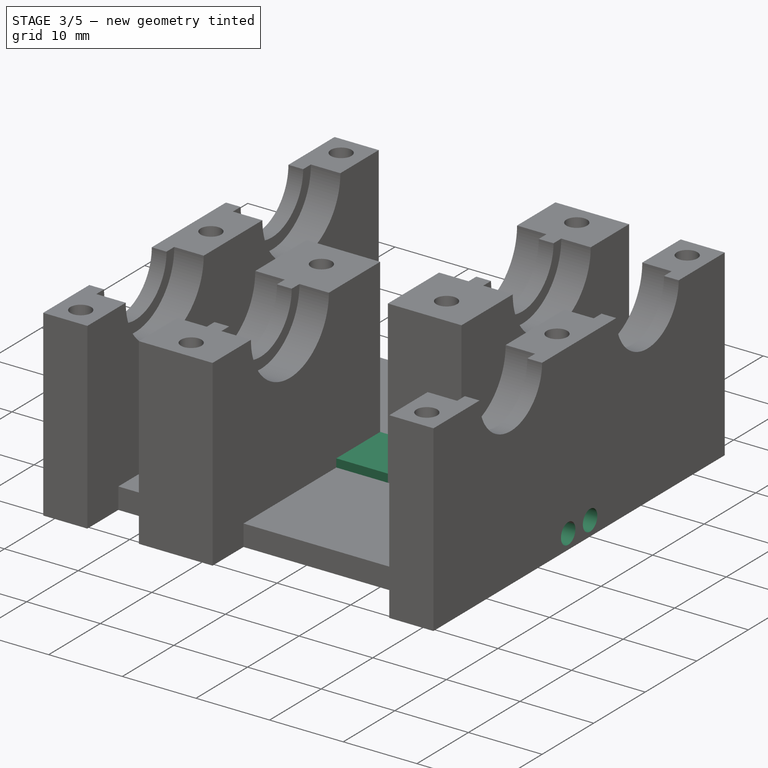
[diagram: stage 3 of 5 — iso view after this stage's code; geometry added in this stage tinted green]
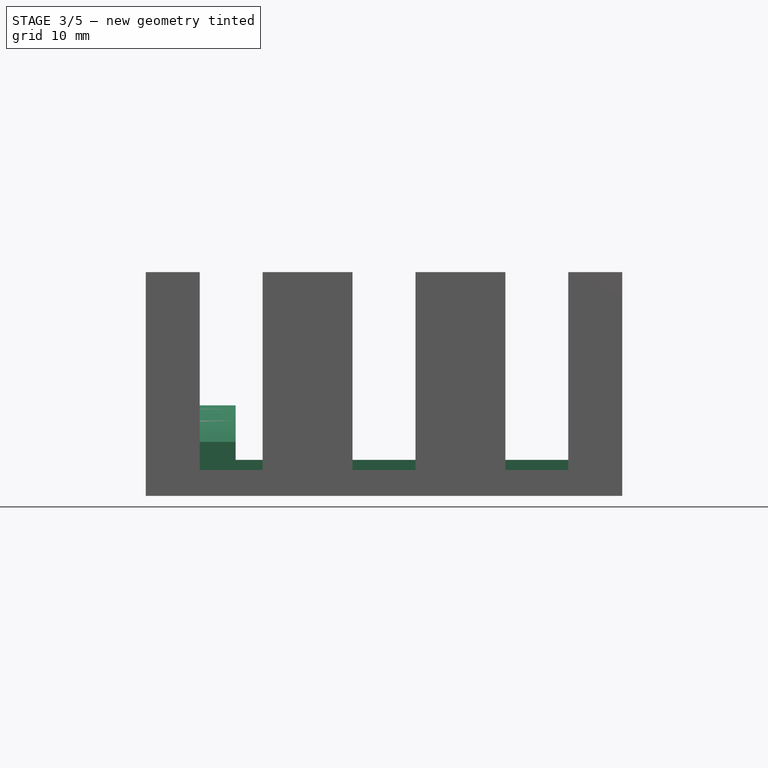
[diagram: stage 3 of 5 — front view after this stage's code; geometry added in this stage tinted green]
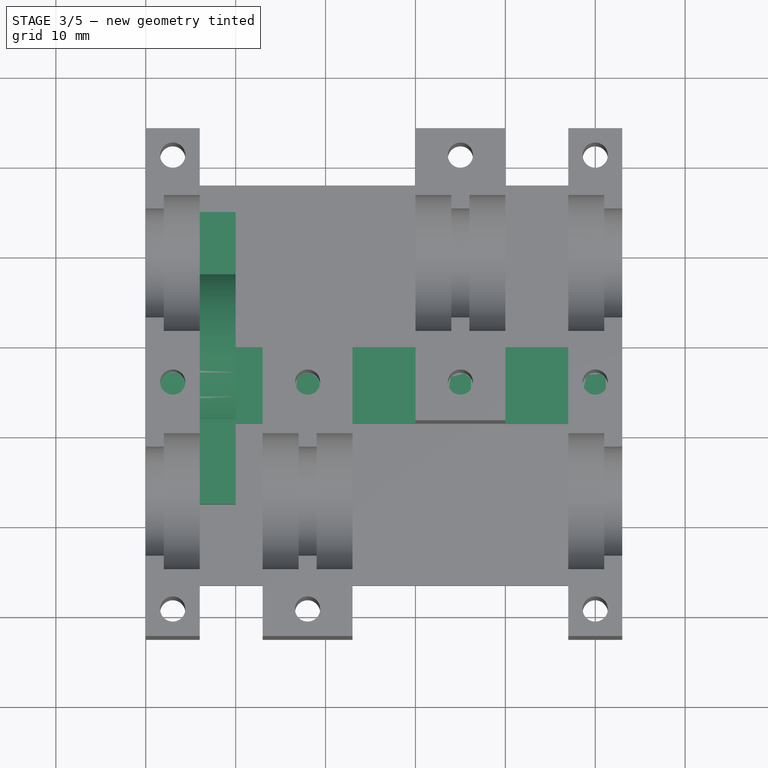
[diagram: stage 3 of 5 — top view after this stage's code; geometry added in this stage tinted green]
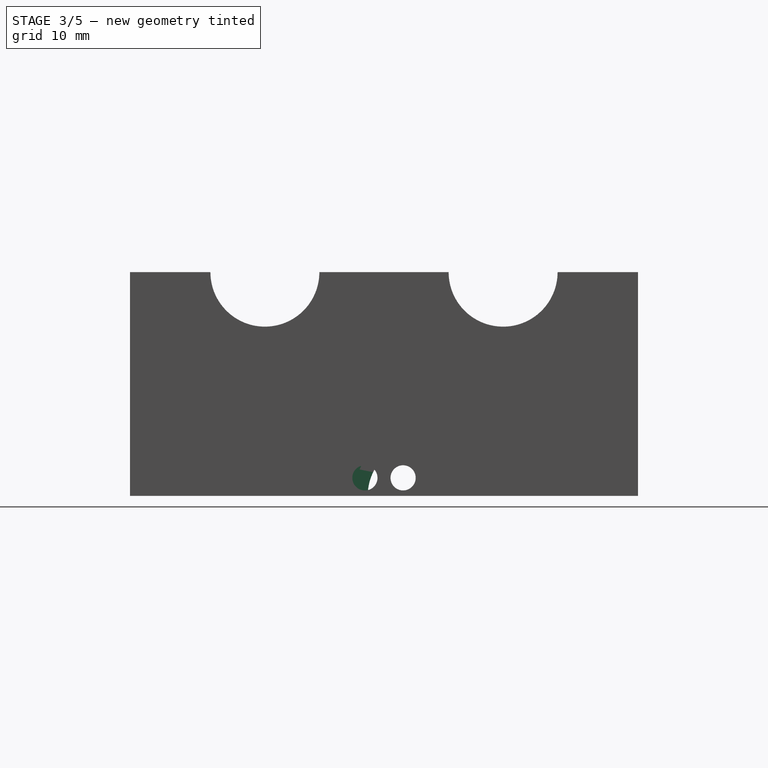
[diagram: stage 3 of 5 — right view after this stage's code; geometry added in this stage tinted green]
FEATURE [Sketcher::SketchObject] Sketch006  label="Sketch006BottomVertScrewPlace"
  FullyConstrained = true
  MapMode = 5
  Placement = pos=(0,0,0) rot=(0.57735,0.57735,0.57735;2.0944rad)
  Support = -> [YZ_Plane]
  expr: Constraints[10] = Spreadsheet.bottomVerticalScrewPlaceHeight
  expr: Constraints[9] = Spreadsheet.supportVerticalDist
  sketch-geometry (4):
    g0: LineSegment StartX=0 StartY=0 StartZ=0 EndX=-8.5 EndY=0 EndZ=0
    g1: LineSegment StartX=-8.5 StartY=0 StartZ=0 EndX=-8.5 EndY=4 EndZ=0
    g2: LineSegment StartX=-8.5 StartY=4 StartZ=0 EndX=0 EndY=4 EndZ=0
    g3: LineSegment StartX=0 StartY=4 StartZ=0 EndX=0 EndY=0 EndZ=0
  constraints (11):
    c: Coincident(g0,g1)
    c: Coincident(g1,g2)
    c: Coincident(g2,g3)
    c: Coincident(g3,g0)
    c: Horizontal(g0)
    c: Horizontal(g2)
    c: Vertical(g1)
    c: Vertical(g3)
    c: Coincident(g0,g-1)
    c: DistanceX(g2,g2) = 8.5
    c: DistanceY(g3,g3) = 4
FEATURE [Sketcher::SketchObject] Sketch007  label="Sketch007BottomVerticalScrewHole"
  FullyConstrained = false
  MapMode = 5
  Placement = pos=(0,0,0) rot=(0.57735,0.57735,0.57735;2.0944rad)
  Support = -> [YZ_Plane]
  expr: Constraints[2] = Spreadsheet.bottomVerticalScrewPlaceHeight / 2
  expr: Constraints[6] = Spreadsheet.screwR
  expr: Constraints[7] = Spreadsheet.supportVerticalDist / 4
  expr: Constraints[8] = Spreadsheet.supportVerticalDist * 3 / 4
  sketch-geometry (3):
    g0: LineSegment StartX=-14.8131 StartY=2 StartZ=0 EndX=0 EndY=2 EndZ=0
    g1: Circle CenterX=-2.125 CenterY=2 CenterZ=0 NormalX=0 NormalY=0 NormalZ=1 AngleXU=0 Radius=1.4
    g2: Circle CenterX=-6.375 CenterY=2 CenterZ=0 NormalX=0 NormalY=0 NormalZ=1 AngleXU=0 Radius=1.4
  constraints (9):
    c: PointOnObject(g0,g-2)
    c: Horizontal(g0)
    c: DistanceY(g-1,g0) = 2
    c: PointOnObject(g1,g0)
    c: PointOnObject(g2,g0)
    c: Equal(g1,g2)
    c: Radius(g1) = 1.4
    c: DistanceX(g1,g-1) = 2.125
    c: DistanceX(g2,g-1) = 6.375
FEATURE [PartDesign::Pad] Pad003
  BaseFeature = -> Pad002
  Direction = (1,-2e-16,3e-16)
  Length = 53
  Length2 = 10
  Profile = -> Sketch006
  ReferenceAxis = -> Sketch006 [N_Axis]
  Type = 0
  expr: Length = Spreadsheet.totalFrontShaftFaceWidth
FEATURE [PartDesign::Pocket] Pocket
  BaseFeature = -> Pad003
  Direction = (-1,2e-16,-3e-16)
  Length = 5
  Length2 = 5
  Profile = -> Sketch007
  ReferenceAxis = -> Sketch007 [N_Axis]
  Reversed = true
  Type = 1
FEATURE [PartDesign::Body] Body001  label="Body001SideCover"
  Group = -> [Sketch009,DatumLine002,DatumLine003,Sketch010,Sketch011,Pad004,Groove003,Groove004,Sketch012,Pocket001,Sketch013,DatumLine004,DatumLine005,DatumLine006,Pocket002]
  Origin = -> Origin001
  Tip = -> Pocket002
FEATURE [Sketcher::SketchObject] Sketch014  label="Sketch014BigCurve"
  FullyConstrained = true
  MapMode = 5
  Placement = pos=(0,0,0) rot=(0.57735,0.57735,0.57735;2.0944rad)
  Support = -> [YZ_Plane002]
  expr: Constraints[10] = Spreadsheet.bearingBlockSize / 2 + Spreadsheet.supportVerticalDist
  expr: Constraints[11] = Spreadsheet.sideWidth
  expr: Constraints[13] = Spreadsheet.shaftPassR
  expr: Constraints[15] = Spreadsheet.coverBearingHoldOutsideR
  expr: Constraints[9] = Spreadsheet.bearingBlockSize / 2 + Spreadsheet.sideWidth
  sketch-geometry (8):
    g0: LineSegment StartX=-17.5 StartY=0 StartZ=0 EndX=-6.06 EndY=0 EndZ=0
    g1: LineSegment StartX=15 StartY=0 StartZ=0 EndX=15 EndY=6 EndZ=0
    g2: LineSegment StartX=15 StartY=6 StartZ=0 EndX=8.07487 EndY=6 EndZ=0
    g3: LineSegment StartX=-17.5 StartY=0 StartZ=0 EndX=-17.5 EndY=6 EndZ=0
    g4: ArcOfCircle CenterX=0 CenterY=0 CenterZ=0 NormalX=0 NormalY=0 NormalZ=1 AngleXU=0 Radius=6.06 StartAngle=0 EndAngle=3.14159
    g5: ArcOfCircle CenterX=0 CenterY=0 CenterZ=0 NormalX=0 NormalY=0 NormalZ=1 AngleXU=0 Radius=10.06 StartAngle=0.639035 EndAngle=2.50256
    g6: LineSegment StartX=6.06 StartY=0 StartZ=0 EndX=15 EndY=0 EndZ=0
    g7: LineSegment StartX=-8.07487 StartY=6 StartZ=0 EndX=-17.5 EndY=6 EndZ=0
  constraints (25):
    c: PointOnObject(g0,g-1)
    c: PointOnObject(g6,g-1)
    c: Coincident(g1,g6)
    c: Vertical(g1)
    c: Coincident(g2,g1)
    c: Coincident(g3,g0)
    c: Coincident(g3,g7)
    c: Vertical(g3)
    c: Horizontal(g2)
    c: DistanceX(g-1,g6) = 15
    c: DistanceX(g0,g-1) = 17.5
    c: DistanceY(g1,g1) = 6
    c: Coincident(g4,g-1)
    c: Radius(g4) = 6.06
    c: Coincident(g5,g4)
    c: Radius(g5) = 10.06
    c: Coincident(g0,g4)
    c: Coincident(g6,g4)
    c: Horizontal(g6)
    c: PointOnObject(g5,g2)
    c: Horizontal(g0)
    c: PointOnObject(g7,g5)
    c: Coincident(g2,g5)
    c: Horizontal(g7)
    c: Equal(g1,g3)
FEATURE [PartDesign::Pad] Pad005
  Direction = (1,-2e-16,3e-16)
  Length = 10
  Length2 = 10
  Placement = pos=(0,0,0) rot=(0.57735,0.57735,0.57735;2.0944rad)
  Profile = -> Sketch014
  ReferenceAxis = -> Sketch014 [N_Axis]
  Type = 0
  expr: Length = Spreadsheet.normalBlockWidth
FEATURE [Sketcher::SketchObject] Sketch015
  FullyConstrained = true
  MapMode = 5
  Support = -> [XY_Plane002]
  expr: Constraints[17] = Spreadsheet.shaftPassR
  expr: Constraints[18] = Spreadsheet.shaftPassR
  expr: Constraints[19] = Spreadsheet.bearingWidth
  expr: Constraints[21] = Spreadsheet.bearingWidth + Spreadsheet.bearingSpacing
  expr: Constraints[22] = Spreadsheet.bearingR
  sketch-geometry (8):
    g0: LineSegment StartX=6 StartY=7.56 StartZ=0 EndX=10 EndY=7.56 EndZ=0
    g1: LineSegment StartX=10 StartY=7.56 StartZ=0 EndX=10 EndY=6.06 EndZ=0
    g2: LineSegment StartX=10 StartY=6.06 StartZ=0 EndX=6 EndY=6.06 EndZ=0
    g3: LineSegment StartX=6 StartY=6.06 StartZ=0 EndX=6 EndY=7.56 EndZ=0
    g4: LineSegment StartX=0 StartY=7.56 StartZ=0 EndX=4 EndY=7.56 EndZ=0
    g5: LineSegment StartX=4 StartY=7.56 StartZ=0 EndX=4 EndY=6.06 EndZ=0
    g6: LineSegment StartX=4 StartY=6.06 StartZ=0 EndX=0 EndY=6.06 EndZ=0
    g7: LineSegment StartX=0 StartY=6.06 StartZ=0 EndX=0 EndY=7.56 EndZ=0
  constraints (24):
    c: Coincident(g0,g1)
    c: Coincident(g1,g2)
    c: Coincident(g2,g3)
    c: Coincident(g3,g0)
    c: Horizontal(g0)
    c: Horizontal(g2)
    c: Vertical(g1)
    c: Vertical(g3)
    c: Coincident(g4,g5)
    c: Coincident(g5,g6)
    c: Coincident(g6,g7)
    c: Coincident(g7,g4)
    c: Horizontal(g4)
    c: Horizontal(g6)
    c: Vertical(g5)
    c: Vertical(g7)
    c: PointOnObject(g4,g-2)
    c: DistanceY(g-1,g6) = 6.06
    c: DistanceY(g-1,g2) = 6.06
    c: DistanceX(g6,g6) = 4
    c: Equal(g6,g2)
    c: DistanceX(g6,g2) = 6
    c: DistanceY(g-1,g4) = 7.56
    c: Equal(g7,g3)
FEATURE [PartDesign::Groove] Groove005
  Angle = 360
  Axis = (1,0,0)
  Base = (0,0,0)
  BaseFeature = -> Pad005
  Placement = pos=(0,0,0) rot=(0.57735,0.57735,0.57735;2.0944rad)
  Profile = -> Sketch015
  ReferenceAxis = -> X_Axis002
  Reversed = true
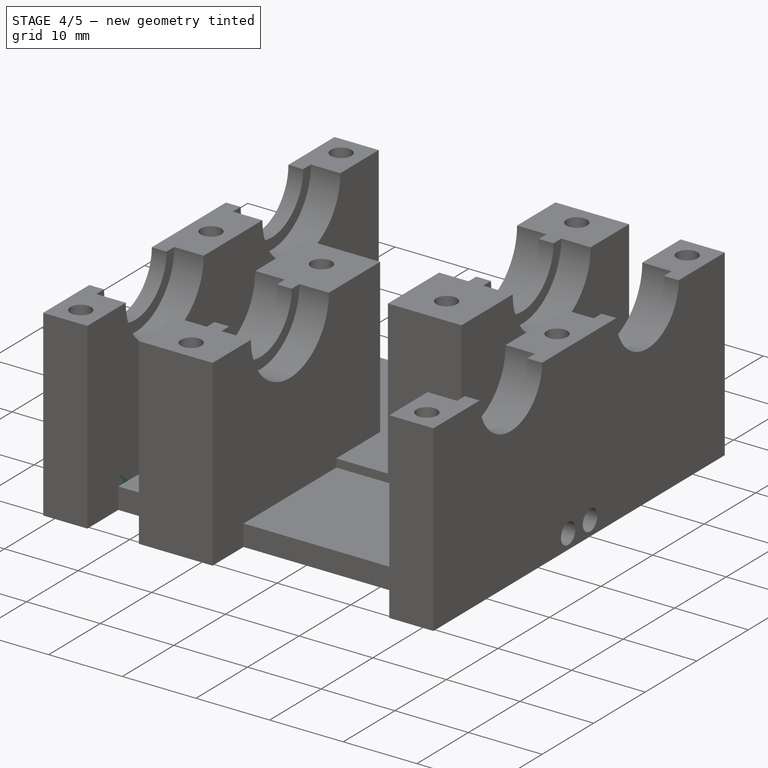
[diagram: stage 4 of 5 — iso view after this stage's code; geometry added in this stage tinted green]
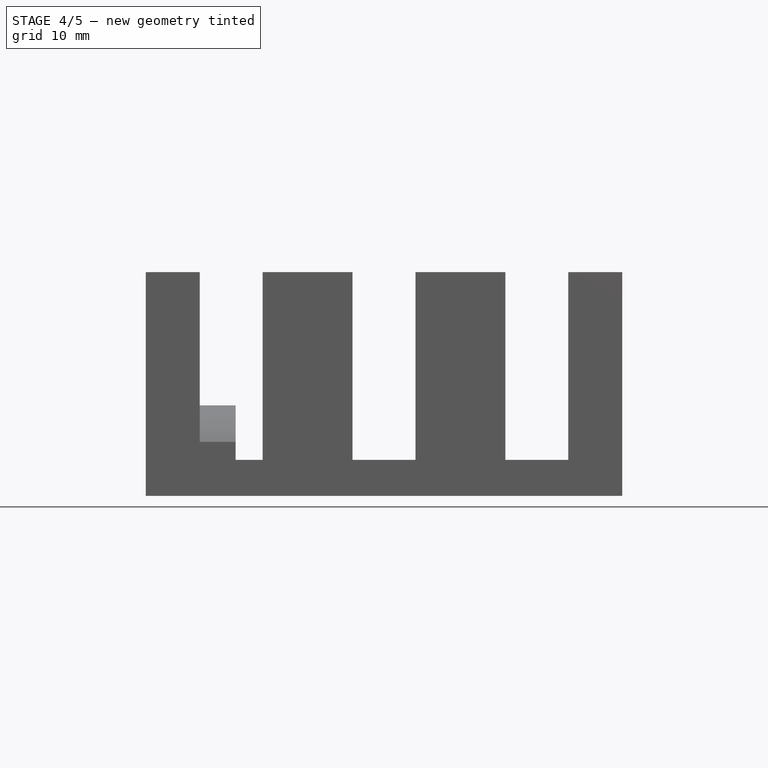
[diagram: stage 4 of 5 — front view after this stage's code; geometry added in this stage tinted green]
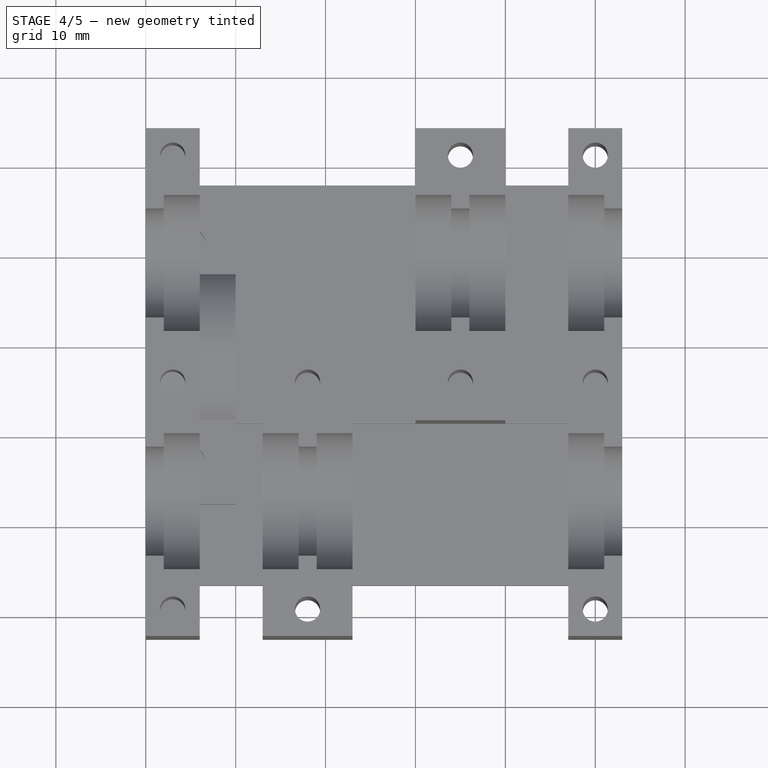
[diagram: stage 4 of 5 — top view after this stage's code; geometry added in this stage tinted green]
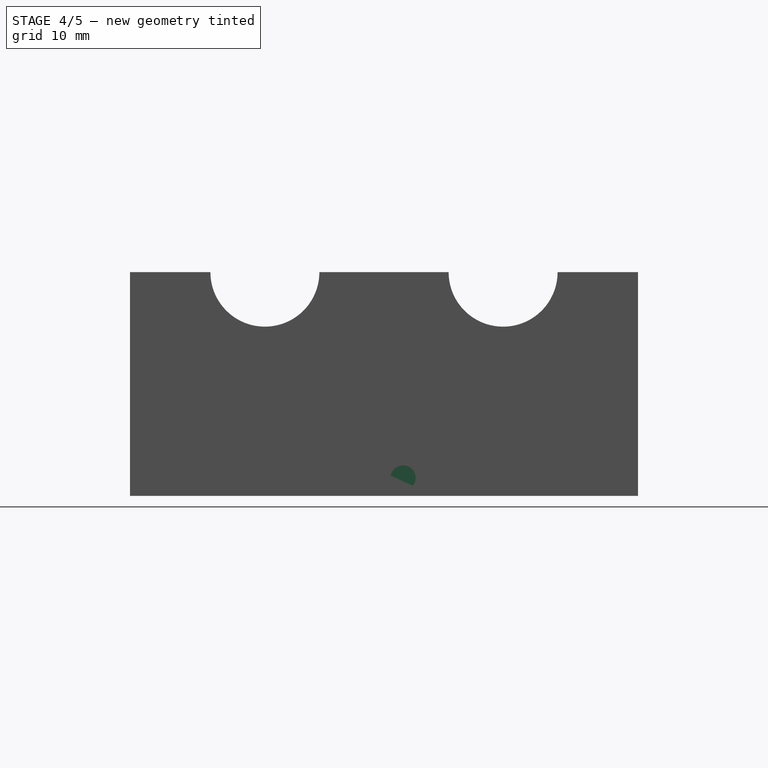
[diagram: stage 4 of 5 — right view after this stage's code; geometry added in this stage tinted green]
FEATURE [Sketcher::SketchObject] Sketch009  label="Sketch009TopBearingCut"
  FullyConstrained = true
  MapMode = 5
  Support = -> [XY_Plane001]
  expr: Constraints[10] = Spreadsheet.smallShaftHoleToSide
  expr: Constraints[11] = Spreadsheet.biggerBearingHoleToSide
  expr: Constraints[8] = Spreadsheet.bearingSpacing
  expr: Constraints[9] = Spreadsheet.singleBearingWidth
  sketch-geometry (4):
    g0: LineSegment StartX=2 StartY=1.44 StartZ=0 EndX=6 EndY=1.44 EndZ=0
    g1: LineSegment StartX=6 StartY=1.44 StartZ=0 EndX=6 EndY=2.94 EndZ=0
    g2: LineSegment StartX=6 StartY=2.94 StartZ=0 EndX=2 EndY=2.94 EndZ=0
    g3: LineSegment StartX=2 StartY=1.44 StartZ=0 EndX=2 EndY=2.94 EndZ=0
  constraints (12):
    c: Horizontal(g0)
    c: Coincident(g1,g0)
    c: Coincident(g2,g1)
    c: Vertical(g1)
    c: Coincident(g3,g0)
    c: Vertical(g3)
    c: Coincident(g3,g2)
    c: Horizontal(g2)
    c: DistanceX(g-1,g0) = 2
    c: DistanceX(g-1,g0) = 6
    c: DistanceY(g-1,g1) = 2.94
    c: DistanceY(g-1,g0) = 1.44
FEATURE [PartDesign::Line] DatumLine002  label="DatumLine002FirstRotate"
  AttacherType = Attacher::AttachEngineLine
  AttachmentOffset = pos=(9,0,100) rot=(0,1,0;0rad)
  Length = 20
  MapMode = 18
  Placement = pos=(100,9,2.58e-14) rot=(0.57735,0.57735,0.57735;2.0944rad)
  ResizeMode = 0
  Support = -> [YZ_Plane001]
  expr: .AttachmentOffset.Base.x = Spreadsheet.bearingBlockSize / 2
FEATURE [PartDesign::Line] DatumLine003  label="DatumLine003SecondRotate"
  AttacherType = Attacher::AttachEngineLine
  AttachmentOffset = pos=(-17.5,0,0) rot=(0,1,0;0rad)
  Length = 20
  MapMode = 18
  Placement = pos=(-5.8e-15,-17.5,3.9e-15) rot=(0.57735,0.57735,0.57735;2.0944rad)
  ResizeMode = 0
  Support = -> [YZ_Plane001]
  expr: .AttachmentOffset.Base.x = -Spreadsheet.bearingBlockSize / 2 - Spreadsheet.supportVerticalDist
FEATURE [Sketcher::SketchObject] Sketch010  label="Sketch010BottomBearingCut"
  ExternalGeometry = -> [DatumLine003]
  FullyConstrained = true
  MapMode = 5
  Support = -> [XY_Plane001]
  expr: Constraints[10] = Spreadsheet.bearingR
  expr: Constraints[11] = Spreadsheet.shaftPassR
  expr: Constraints[8] = Spreadsheet.singleBearingWidth - Spreadsheet.bearingSpacing
  expr: Constraints[9] = Spreadsheet.bearingSpacing
  sketch-geometry (4):
    g0: LineSegment StartX=2 StartY=-9.94 StartZ=0 EndX=6 EndY=-9.94 EndZ=0
    g1: LineSegment StartX=6 StartY=-9.94 StartZ=0 EndX=6 EndY=-11.44 EndZ=0
    g2: LineSegment StartX=6 StartY=-11.44 StartZ=0 EndX=2 EndY=-11.44 EndZ=0
    g3: LineSegment StartX=2 StartY=-11.44 StartZ=0 EndX=2 EndY=-9.94 EndZ=0
  constraints (12):
    c: Coincident(g1,g0)
    c: Coincident(g2,g1)
    c: Horizontal(g2)
    c: Coincident(g3,g2)
    c: Vertical(g3)
    c: Horizontal(g0)
    c: Vertical(g1)
    c: Coincident(g0,g3)
    c: DistanceX(g0,g0) = 4
    c: DistanceX(g-1,g0) = 2
    c: Distance(g0,g-3) = 7.56
    c: Distance(g2,g-3) = 6.06
FEATURE [Sketcher::SketchObject] Sketch011  label="Sketch011BaseShape"
  FullyConstrained = true
  MapMode = 5
  Placement = pos=(0,0,0) rot=(0.57735,0.57735,0.57735;2.0944rad)
  Support = -> [YZ_Plane001]
  expr: Constraints[10] = Spreadsheet.bearingBlockSize + Spreadsheet.sideWidth + Spreadsheet.supportVerticalDist
  expr: Constraints[11] = Spreadsheet.sideWidth
  expr: Constraints[12] = Spreadsheet.shaftPassR
  expr: Constraints[13] = Spreadsheet.coverConnOutsideBearingBlockCenter
  expr: Constraints[16] = Spreadsheet.coverConnOutsideBearingBlockCenterLongSide
  expr: Constraints[17] = Spreadsheet.shaftPassR
  expr: Constraints[19] = Spreadsheet.coverBearingHoldOutsideR
  expr: Constraints[20] = Spreadsheet.sideWidth
  expr: Constraints[29] = Spreadsheet.sideWidth
  expr: Constraints[39] = Spreadsheet.sideWidth
  expr: Constraints[46] = Spreadsheet.supportVerticalDist
  expr: Constraints[47] = Spreadsheet.sideWidth
  expr: Constraints[48] = Spreadsheet.coverBearingHoldOutsideR
  expr: Constraints[9] = Spreadsheet.bearingBlockSize + Spreadsheet.sideWidth
  sketch-geometry (16):
    g0: LineSegment StartX=-32.5 StartY=0 StartZ=0 EndX=-23.56 EndY=0 EndZ=0
    g1: LineSegment StartX=24 StartY=0 StartZ=0 EndX=24 EndY=6 EndZ=0
    g2: LineSegment StartX=24 StartY=6 StartZ=0 EndX=18 EndY=6 EndZ=0
    g3: LineSegment StartX=-32.5 StartY=6 StartZ=0 EndX=-32.5 EndY=0 EndZ=0
    g4: LineSegment StartX=0 StartY=6 StartZ=0 EndX=-8.5 EndY=6 EndZ=0
    g5: ArcOfCircle CenterX=9 CenterY=0 CenterZ=0 NormalX=0 NormalY=0 NormalZ=1 AngleXU=0 Radius=6.06 StartAngle=0 EndAngle=3.14159
    g6: ArcOfCircle CenterX=-17.5 CenterY=0 CenterZ=0 NormalX=0 NormalY=0 NormalZ=1 AngleXU=0 Radius=6.06 StartAngle=0 EndAngle=3.14159
    g7: ArcOfCircle CenterX=9 CenterY=0 CenterZ=0 NormalX=0 NormalY=0 NormalZ=1 AngleXU=0 Radius=10.06 StartAngle=0.463189 EndAngle=2.6784
    g8: LineSegment StartX=18 StartY=6 StartZ=0 EndX=18 EndY=4.49484 EndZ=0
    g9: LineSegment StartX=15.06 StartY=0 StartZ=0 EndX=24 EndY=0 EndZ=0
    g10: LineSegment StartX=0 StartY=4.49484 StartZ=0 EndX=0 EndY=6 EndZ=0
    g11: LineSegment StartX=-11.44 StartY=0 StartZ=0 EndX=2.94 EndY=0 EndZ=0
    g12: LineSegment StartX=-26.5 StartY=6 StartZ=0 EndX=-32.5 EndY=6 EndZ=0
    g13: LineSegment StartX=-8.5 StartY=6 StartZ=0 EndX=-8.5 EndY=4.49484 EndZ=0
    g14: LineSegment StartX=-26.5 StartY=6 StartZ=0 EndX=-26.5 EndY=4.49484 EndZ=0
    g15: ArcOfCircle CenterX=-17.5 CenterY=0 CenterZ=0 NormalX=0 NormalY=0 NormalZ=1 AngleXU=0 Radius=10.06 StartAngle=0.463189 EndAngle=2.6784
  constraints (50):
    c: Coincident(g9,g1)
    c: Coincident(g1,g2)
    c: Coincident(g12,g3)
    c: Coincident(g3,g0)
    c: Horizontal(g0)
    c: Horizontal(g2)
    c: Vertical(g1)
    c: Vertical(g3)
    c: PointOnObject(g0,g-1)
    c: DistanceX(g-1,g9) = 24
    c: DistanceX(g0,g-1) = 32.5
    c: DistanceY(g1,g1) = 6
    c: Radius(g5) = 6.06
    c: DistanceX(g-1,g5) = 9
    c: PointOnObject(g5,g0)
    c: PointOnObject(g6,g0)
    c: DistanceX(g6,g-1) = 17.5
    c: Radius(g6) = 6.06
    c: Coincident(g7,g5)
    c: Radius(g7) = 10.06
    c: DistanceX(g2,g2) = 6
    c: Coincident(g8,g2)
    c: Vertical(g8)
    c: Coincident(g7,g8)
    c: Coincident(g11,g5)
    c: Coincident(g9,g5)
    c: PointOnObject(g1,g-1)
    c: PointOnObject(g5,g-1)
    c: Horizontal(g4)
    c: DistanceY(g-1,g4) = 6
    c: PointOnObject(g4,g-2)
    c: Coincident(g10,g4)
    c: Vertical(g10)
    c: Coincident(g7,g10)
    c: Coincident(g0,g6)
    c: Coincident(g11,g6)
    c: PointOnObject(g6,g-1)
    c: PointOnObject(g5,g-1)
    c: Horizontal(g12)
    c: DistanceY(g0,g3) = 6
    c: Coincident(g13,g4)
    c: Vertical(g13)
    c: Coincident(g14,g12)
    c: Vertical(g14)
    c: Coincident(g15,g14)
    c: Coincident(g15,g13)
    c: DistanceX(g4,g4) = 8.5
    c: DistanceX(g12,g12) = 6
    c: Radius(g15) = 10.06
    c: Coincident(g15,g6)
FEATURE [PartDesign::Pad] Pad004  label="Pad004BaseShapeDoubleCir"
  Direction = (1,-2e-16,3e-16)
  Length = 6
  Length2 = 10
  Placement = pos=(0,0,0) rot=(0.57735,0.57735,0.57735;2.0944rad)
  Profile = -> Sketch011
  ReferenceAxis = -> Sketch011 [N_Axis]
  Type = 0
  expr: Length = Spreadsheet.singleBearingWidth
FEATURE [PartDesign::Groove] Groove003
  Angle = 360
  Axis = (1,-2e-16,3e-16)
  Base = (100,9,2.58e-14)
  BaseFeature = -> Pad004
  Placement = pos=(0,0,0) rot=(0.57735,0.57735,0.57735;2.0944rad)
  Profile = -> Sketch009
  ReferenceAxis = -> DatumLine002
FEATURE [Sketcher::SketchObject] Sketch016
  ExternalGeometry = -> [Groove005]
  FullyConstrained = false
  MapMode = 5
  Support = -> [XY_Plane002]
  expr: Constraints[11] = Spreadsheet.passingM3ScrewR
  sketch-geometry (5):
    g0: LineSegment StartX=5 StartY=15 StartZ=0 EndX=5 EndY=-21.853 EndZ=0
    g1: LineSegment StartX=5 StartY=11.5374 StartZ=0 EndX=10 EndY=11.5374 EndZ=0
    g2: LineSegment StartX=5 StartY=-12.7874 StartZ=0 EndX=10 EndY=-12.7874 EndZ=0
    g3: Circle CenterX=5 CenterY=11.5374 CenterZ=0 NormalX=0 NormalY=0 NormalZ=1 AngleXU=0 Radius=1.6
    g4: Circle CenterX=5 CenterY=-12.7874 CenterZ=0 NormalX=0 NormalY=0 NormalZ=1 AngleXU=0 Radius=1.6
  constraints (12):
    c: Vertical(g0)
    c: Symmetric(g-3,g-3,g0)
    c: Horizontal(g1)
    c: Horizontal(g2)
    c: Symmetric(g-3,g-5,g1)
    c: Symmetric(g-4,g-6,g2)
    c: PointOnObject(g2,g0)
    c: PointOnObject(g1,g0)
    c: Coincident(g3,g1)
    c: Coincident(g4,g2)
    c: Equal(g3,g4)
    c: Radius(g3) = 1.6
FEATURE [PartDesign::Pocket] Pocket003
  BaseFeature = -> Groove005
  Direction = (0,0,-1)
  Length = 5
  Length2 = 5
  Placement = pos=(0,0,0) rot=(0.57735,0.57735,0.57735;2.0944rad)
  Profile = -> Sketch016
  ReferenceAxis = -> Sketch016 [N_Axis]
  Reversed = true
  Type = 1
FEATURE [PartDesign::Body] Body002  label="Body002CenterCover"
  Group = -> [Sketch014,Pad005,Sketch015,Groove005,Sketch016,Pocket003]
  Origin = -> Origin002
  Tip = -> Pocket003
FEATURE [Sketcher::SketchObject] Sketch017
  ExternalGeometry = -> [Sketch004,Pocket]
  FullyConstrained = false
  MapMode = 5
  Placement = pos=(0,0,0) rot=(0.57735,0.57735,0.57735;2.0944rad)
  Support = -> [YZ_Plane]
  sketch-geometry (1):
    g0: LineSegment StartX=-4.25 StartY=27.3095 StartZ=0 EndX=-4.25 EndY=-4.61708 EndZ=0
  constraints (5):
    c: DistanceX(g-3,g-1) = 17.5
    c: DistanceY(g-1,g-3) = 24.88
    c: DistanceX(g-4,g-4) = 8.5
    c: Vertical(g0)
    c: DistanceX(g0,g-1) = 4.25
FEATURE [PartDesign::Body] Body
  Group = -> [Sketch,Sketch001,Pad,Pad001,Sketch002,DatumLine,Groove,Sketch003,Groove001,Sketch004,DatumLine001,Groove002,Sketch005,Pad002,Sketch006,Sketch007,Pad003,Pocket,Sketch017]
  Origin = -> Origin
  Tip = -> Pocket
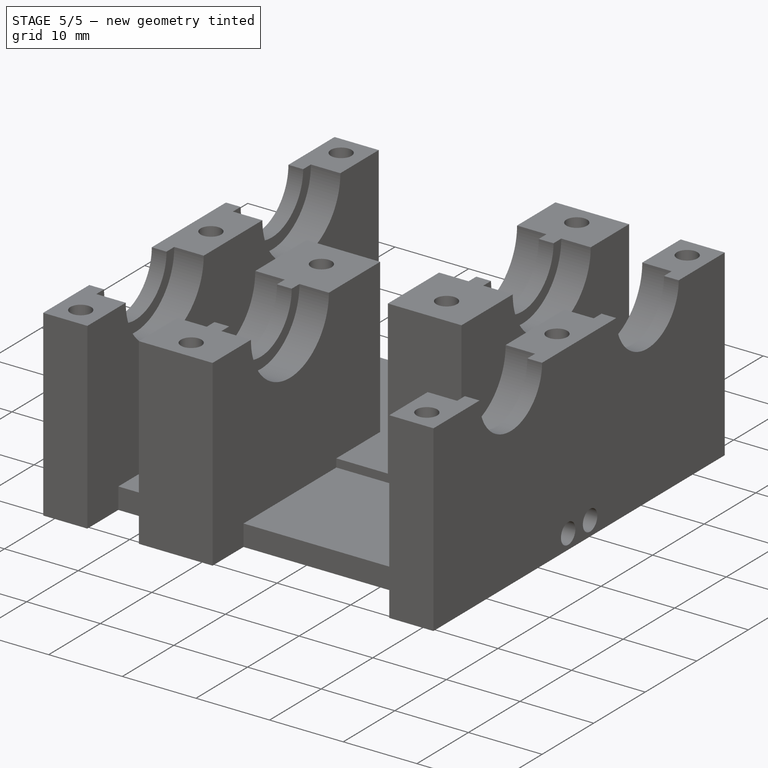
[diagram: stage 5 of 5 — iso view after this stage's code; geometry added in this stage tinted green]
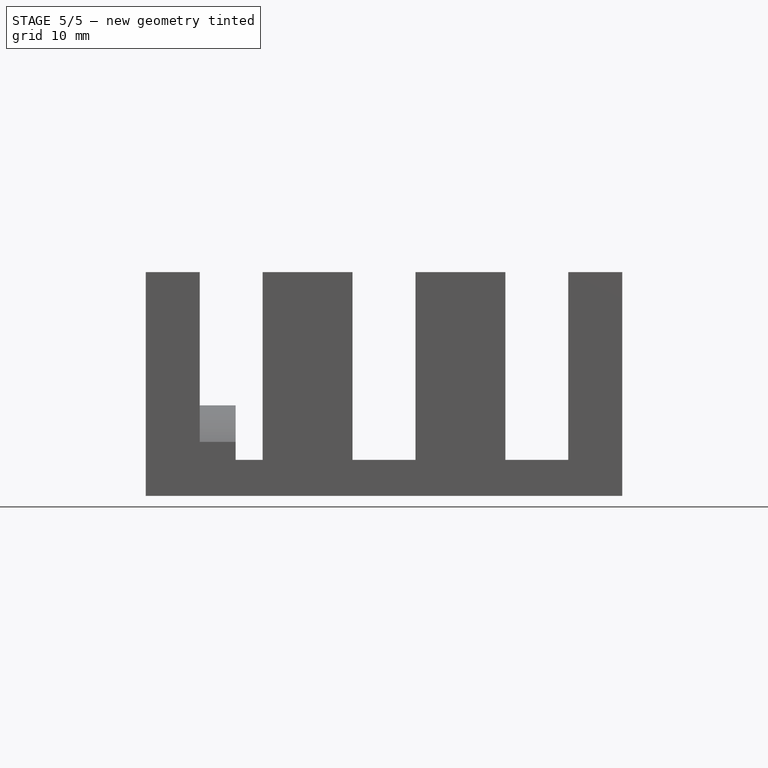
[diagram: stage 5 of 5 — front view after this stage's code; geometry added in this stage tinted green]
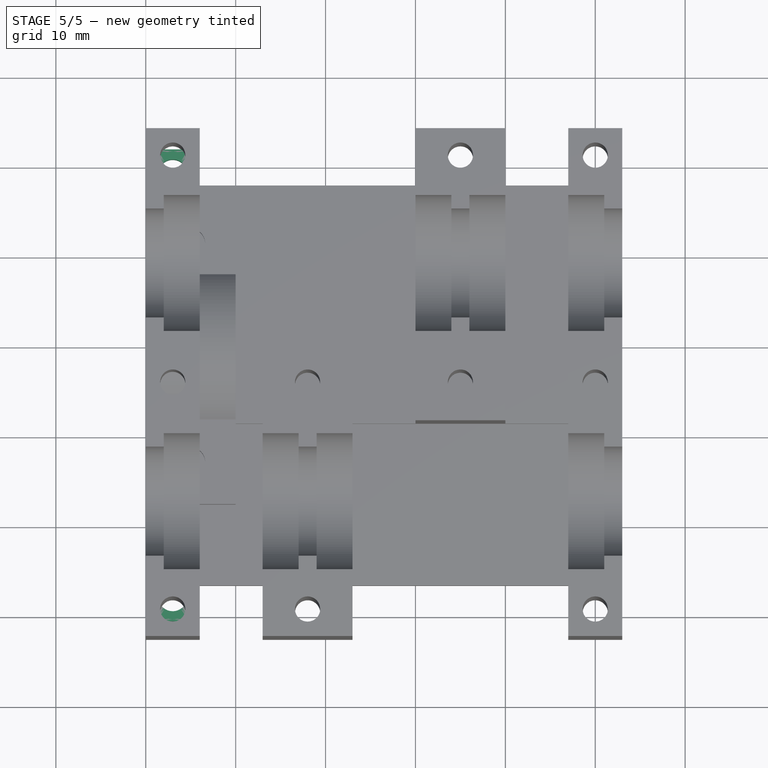
[diagram: stage 5 of 5 — top view after this stage's code; geometry added in this stage tinted green]
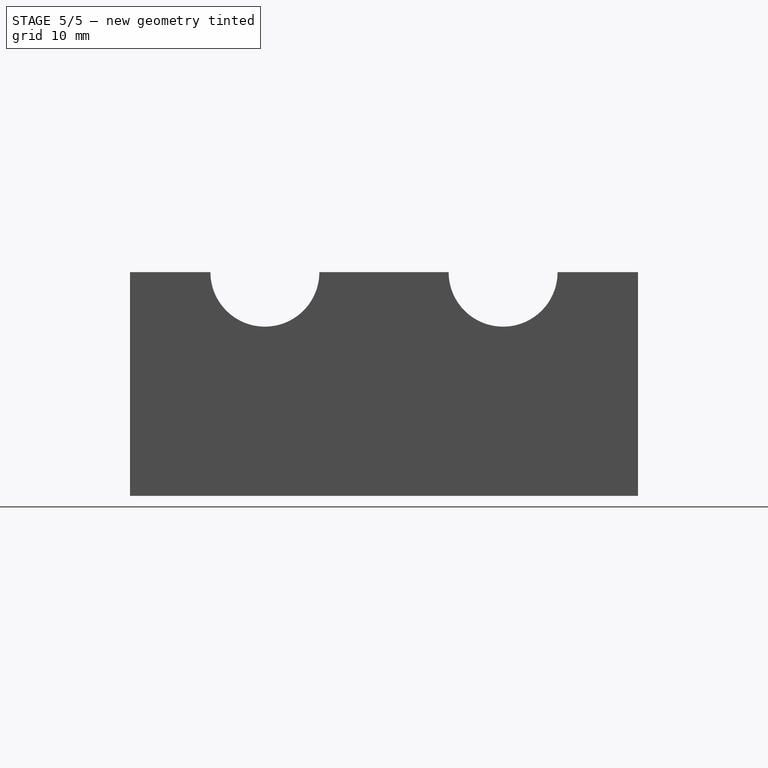
[diagram: stage 5 of 5 — right view after this stage's code; geometry added in this stage tinted green]
FEATURE [PartDesign::Groove] Groove004
  Angle = 360
  Axis = (1,-2e-16,3e-16)
  Base = (-5.8e-15,-17.5,3.9e-15)
  BaseFeature = -> Groove003
  Placement = pos=(0,0,0) rot=(0.57735,0.57735,0.57735;2.0944rad)
  Profile = -> Sketch010
  ReferenceAxis = -> DatumLine003
FEATURE [Sketcher::SketchObject] Sketch012
  ExternalGeometry = -> [Groove004]
  FullyConstrained = false
  MapMode = 5
  Placement = pos=(0,0,1e-16) rot=(0.707107,0.707107,0;3.14159rad)
  Support = -> [Groove004]
  expr: Constraints[16] = Spreadsheet.passingM3ScrewR
  sketch-geometry (7):
    g0: LineSegment StartX=-32.5 StartY=3 StartZ=0 EndX=23.847 EndY=3 EndZ=0
    g1: LineSegment StartX=-28.78 StartY=6 StartZ=0 EndX=-28.78 EndY=3 EndZ=0
    g2: LineSegment StartX=-4.25 StartY=6 StartZ=0 EndX=-4.25 EndY=3 EndZ=0
    g3: LineSegment StartX=20.28 StartY=6 StartZ=0 EndX=20.28 EndY=3 EndZ=0
    g4: Circle CenterX=-28.78 CenterY=3 CenterZ=0 NormalX=0 NormalY=0 NormalZ=1 AngleXU=0 Radius=1.6
    g5: Circle CenterX=-4.25 CenterY=3 CenterZ=0 NormalX=0 NormalY=0 NormalZ=1 AngleXU=0 Radius=1.6
    g6: Circle CenterX=20.28 CenterY=3 CenterZ=0 NormalX=0 NormalY=0 NormalZ=1 AngleXU=0 Radius=1.6
  constraints (17):
    c: Horizontal(g0)
    c: Symmetric(g-3,g-3,g0)
    c: Vertical(g1)
    c: Vertical(g2)
    c: Vertical(g3)
    c: Symmetric(g-3,g-4,g1)
    c: Symmetric(g-5,g-6,g2)
    c: Symmetric(g-7,g-8,g3)
    c: PointOnObject(g1,g0)
    c: PointOnObject(g2,g0)
    c: PointOnObject(g3,g0)
    c: Coincident(g4,g1)
    c: Coincident(g5,g2)
    c: Coincident(g6,g3)
    c: Equal(g4,g5)
    c: Equal(g4,g6)
    c: Radius(g4) = 1.6
FEATURE [PartDesign::Pocket] Pocket001
  BaseFeature = -> Groove004
  Direction = (-1.1e-15,8e-16,1)
  Length = 5
  Length2 = 5
  Placement = pos=(0,0,0) rot=(0.57735,0.57735,0.57735;2.0944rad)
  Profile = -> Sketch012
  ReferenceAxis = -> Sketch012 [N_Axis]
  Type = 1
FEATURE [PartDesign::Line] DatumLine004
  AttacherType = Attacher::AttachEngineLine
  Length = 20
  MapMode = 19
  Placement = pos=(2,9,-3.4e-15) rot=(0.57735,0.57735,0.57735;2.0944rad)
  ResizeMode = 0
  Support = -> [Pocket001]
FEATURE [PartDesign::Line] DatumLine005
  AttacherType = Attacher::AttachEngineLine
  Length = 20
  MapMode = 19
  Placement = pos=(3,-4.25,4) rot=(0.707107,0.707107,0;3.14159rad)
  ResizeMode = 0
  Support = -> [Pocket001]
FEATURE [PartDesign::Line] DatumLine006
  AttacherType = Attacher::AttachEngineLine
  Length = 20
  MapMode = 19
  Placement = pos=(3,-28.78,6) rot=(0.707107,0.707107,0;3.14159rad)
  ResizeMode = 0
  Support = -> [Pocket001]
FEATURE [Sketcher::SketchObject] Sketch013
  ExternalGeometry = -> [DatumLine004,DatumLine005,DatumLine006]
  FullyConstrained = true
  MapMode = 5
  Placement = pos=(-1.7e-15,2.6e-15,6) rot=(0,0,-1;1.5708rad)
  Support = -> [Pocket001]
  expr: Constraints[5] = Spreadsheet.m3HeadSize
  sketch-geometry (3):
    g0: Circle CenterX=-19.28 CenterY=3 CenterZ=0 NormalX=0 NormalY=0 NormalZ=1 AngleXU=0 Radius=2.5
    g1: Circle CenterX=4.25 CenterY=3 CenterZ=0 NormalX=0 NormalY=0 NormalZ=1 AngleXU=0 Radius=2.5
    g2: Circle CenterX=27.78 CenterY=3 CenterZ=0 NormalX=0 NormalY=0 NormalZ=1 AngleXU=0 Radius=2.5
  constraints (6):
    c: Coincident(g0,g-3)
    c: Coincident(g1,g-4)
    c: Coincident(g2,g-5)
    c: Equal(g0,g1)
    c: Equal(g0,g2)
    c: Radius(g0) = 2.5
FEATURE [PartDesign::Pocket] Pocket002
  BaseFeature = -> Pocket001
  Direction = (1.4e-15,-9e-16,-1)
  Length = 5
  Length2 = 5
  Placement = pos=(0,0,0) rot=(0.57735,0.57735,0.57735;2.0944rad)
  Profile = -> Sketch013
  ReferenceAxis = -> Sketch013 [N_Axis]
  Reversed = true
  Type = 0
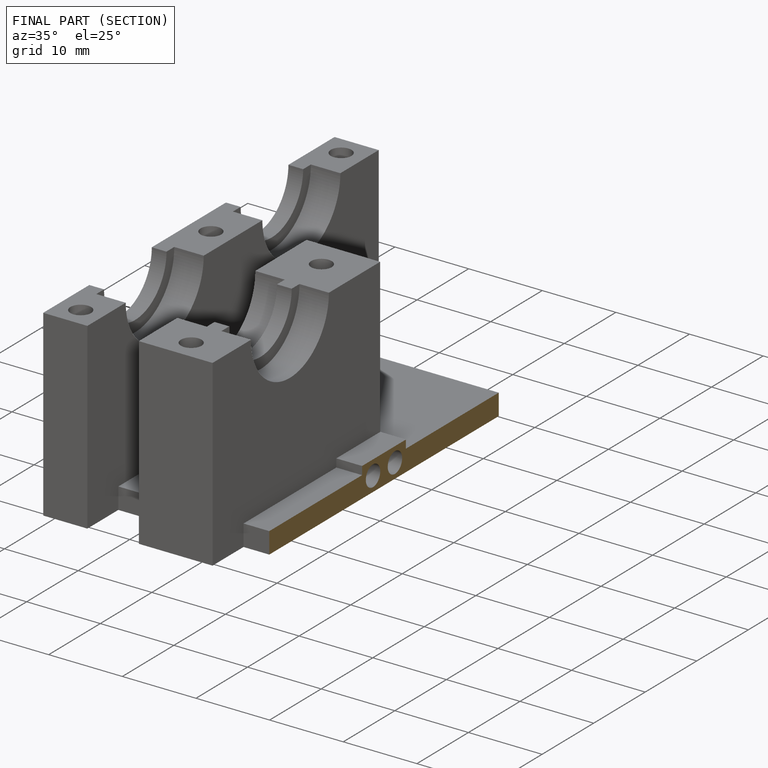
[diagram: finished part — half-section view (interior)]
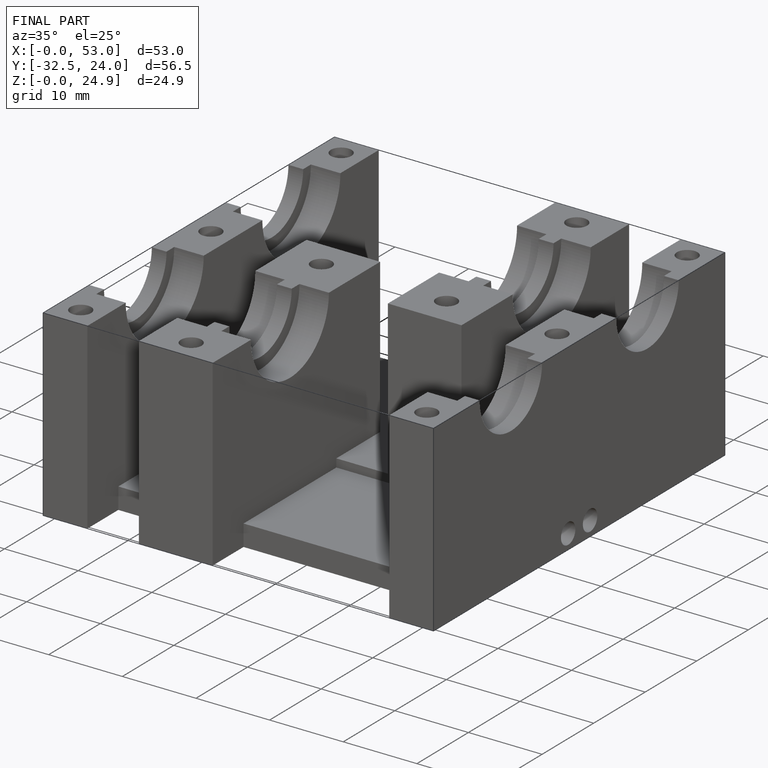
[diagram: finished part — iso view with bounding-box wireframe]
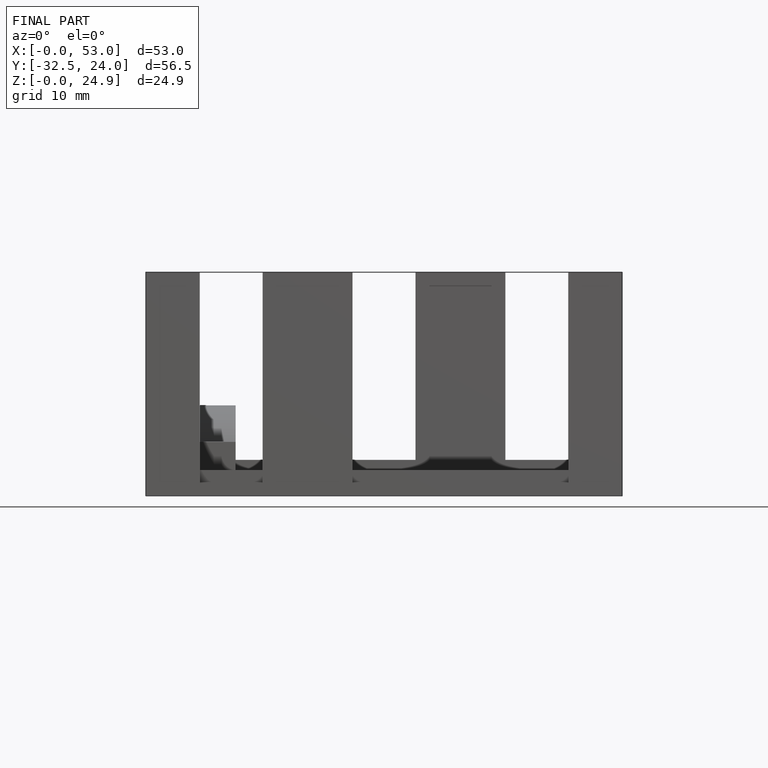
[diagram: finished part — front view with bounding-box wireframe]
